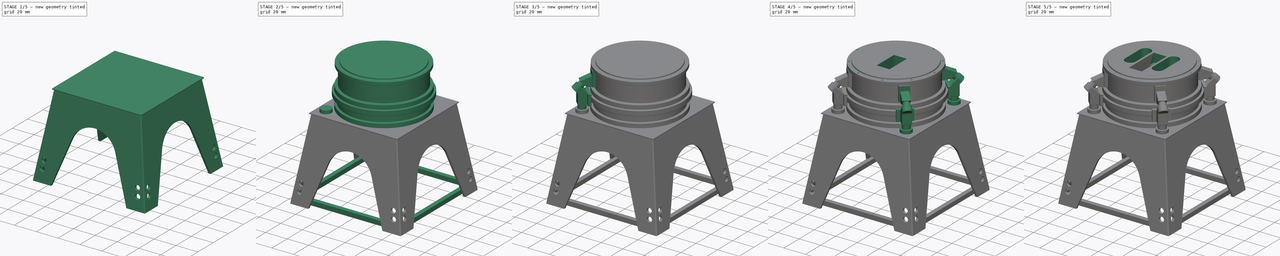
[diagram: build sequence overview — one tinted view per stage of 5, left to right]
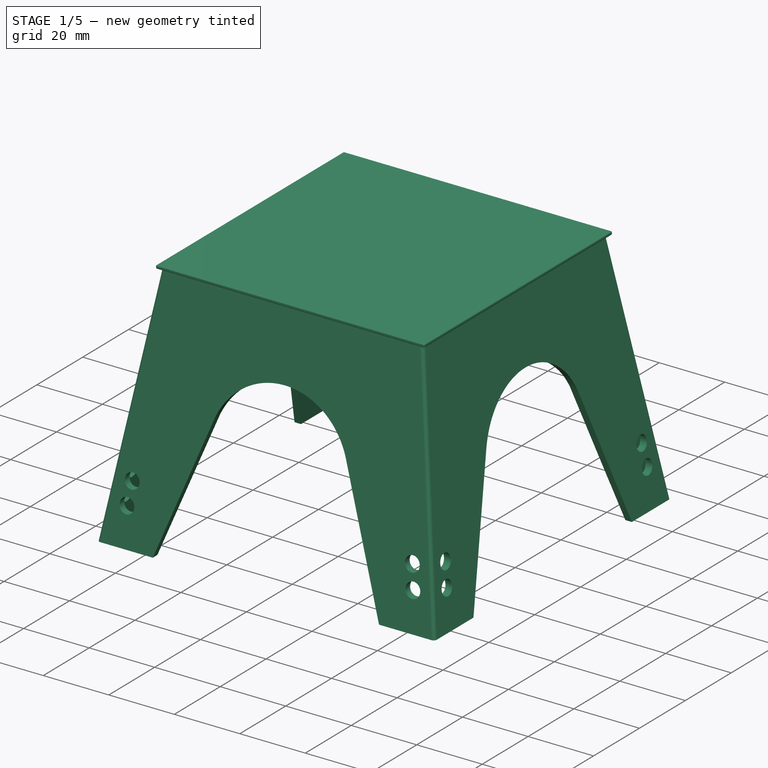
[diagram: stage 1 of 5 — iso view after this stage's code; geometry added in this stage tinted green]
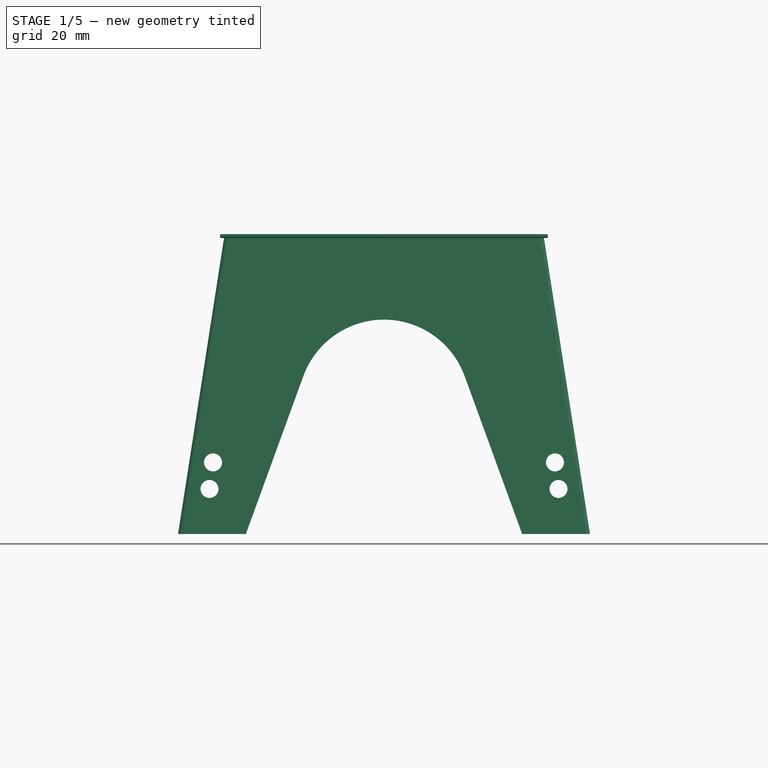
[diagram: stage 1 of 5 — front view after this stage's code; geometry added in this stage tinted green]
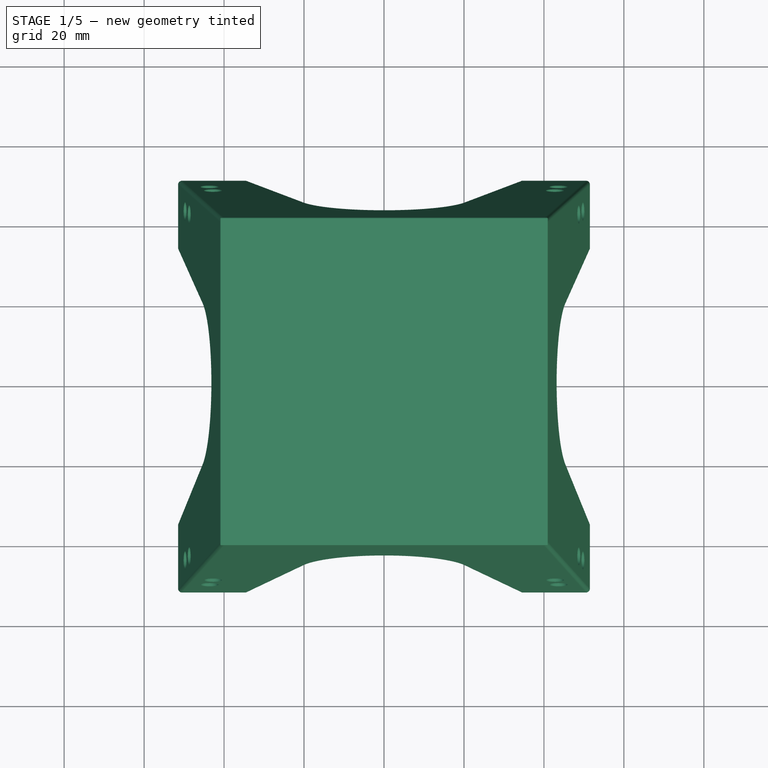
[diagram: stage 1 of 5 — top view after this stage's code; geometry added in this stage tinted green]
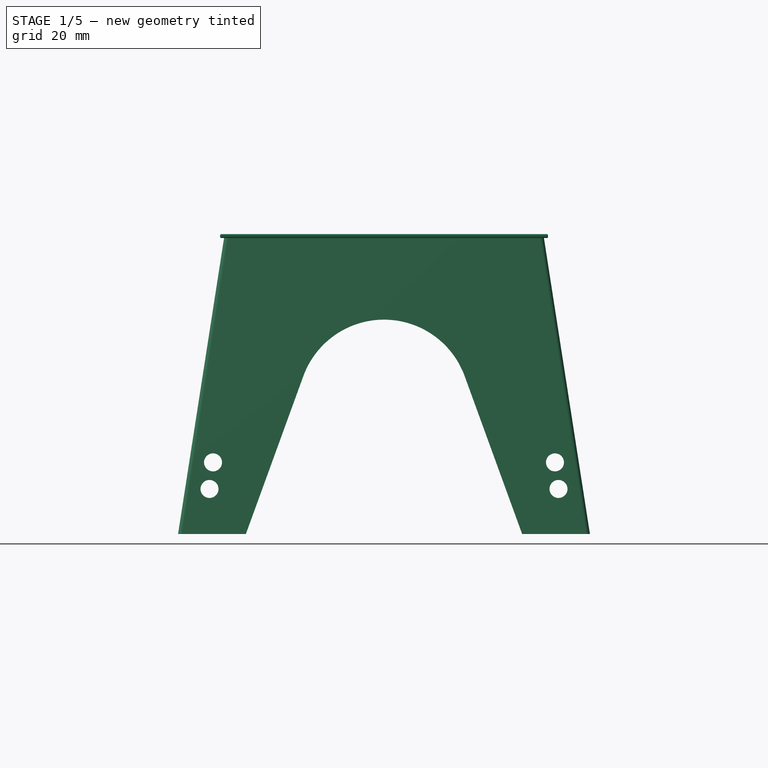
[diagram: stage 1 of 5 — right view after this stage's code; geometry added in this stage tinted green]
FCSTD DOCUMENT  (FreeCAD 1.0R39109 (Git))
Label: FinalsTurretBase_V2_backup
License: All rights reserved
LicenseURL: https://en.wikipedia.org/wiki/All_rights_reserved
objects: Sketcher::SketchObject×25, PartDesign::Pad×15, PartDesign::Pocket×6, PartDesign::Plane×5, PartDesign::PolarPattern×5, PartDesign::Fillet×4, Image::ImagePlane×2, PartDesign::AdditiveLoft×1, PartDesign::SubtractiveLoft×1, PartDesign::Groove×1, PartDesign::Body×1
note: 150 computed .brp shape members not serialized (recipe doc carries the construction recipe); baked Part::Feature solids carry a one-line shape summary decoded from their .brp

FEATURE [Image::ImagePlane] The_Finals_Screenshot_2025  label="The Finals Screenshot 2025"
  Placement = pos=(0,0,0) rot=(1,0,0;1.5708rad)
  XSize = 826.629
  YSize = 464.979
FEATURE [Image::ImagePlane] The_Finals_Screenshot_2026  label="The Finals Screenshot 2026"
  Placement = pos=(0,0,0) rot=(0.57735,0.57735,0.57735;2.0944rad)
  XSize = 826.63
  YSize = 464.98
FEATURE [PartDesign::Plane] DatumPlane
  AttachmentOffset = pos=(0,0,-139) rot=(0,0,1;0rad)
  AttachmentSupport = -> [XY_Plane]
  Length = 123.6
  MapMode = 5
  Placement = pos=(0,0,-139) rot=(0,0,1;0rad)
  ResizeMode = 0
  Width = 123.6
FEATURE [Sketcher::SketchObject] Sketch  label="Legs Box Bottom Sketch"
  ArcFitTolerance = 1e-06
  AttachmentSupport = -> [DatumPlane]
  FullyConstrained = true
  MakeInternals = false
  MapMode = 5
  Placement = pos=(0,0,-139) rot=(0,0,1;0rad)
  sketch-geometry (8):
    g0: LineSegment StartX=-51.5 StartY=51.5 StartZ=0 EndX=-51.5 EndY=-51.5 EndZ=0
    g1: LineSegment StartX=-51.5 StartY=-51.5 StartZ=0 EndX=51.5 EndY=-51.5 EndZ=0
    g2: LineSegment StartX=51.5 StartY=-51.5 StartZ=0 EndX=51.5 EndY=51.5 EndZ=0
    g3: LineSegment StartX=51.5 StartY=51.5 StartZ=0 EndX=-51.5 EndY=51.5 EndZ=0
    g4: LineSegment [constr] StartX=-51.5 StartY=8.96 StartZ=0 EndX=0 EndY=8.96 EndZ=0
    g5: LineSegment [constr] StartX=0 StartY=8.96 StartZ=0 EndX=51.5 EndY=8.96 EndZ=0
    g6: LineSegment [constr] StartX=-11.78 StartY=0 StartZ=0 EndX=-11.78 EndY=51.5 EndZ=0
    g7: LineSegment [constr] StartX=-11.78 StartY=0 StartZ=0 EndX=-11.78 EndY=-51.5 EndZ=0
  constraints (26):
    c: Coincident(g0,g1)
    c: Coincident(g1,g2)
    c: Coincident(g2,g3)
    c: Coincident(g3,g0)
    c: Vertical(g0)
    c: Vertical(g2)
    c: Horizontal(g1)
    c: Horizontal(g3)
    c: PointOnObject(g4,g0)
    c: PointOnObject(g4,g-2)
    c: Horizontal(g4)
    c: Coincident(g5,g4)
    c: PointOnObject(g5,g2)
    c: Horizontal(g5)
    c: Equal(g4,g5)
    c: DistanceX(g1,g1) = 103
    c: PointOnObject(g6,g-1)
    c: PointOnObject(g6,g3)
    c: Vertical(g6)
    c: Coincident(g7,g6)
    c: PointOnObject(g7,g1)
    c: Vertical(g7)
    c: Equal(g7,g6)
    c: DistanceY(g0,g0) = 103
    c: Distance(g-1,g5) = 8.96
    c: Distance(g-2,g6) = 11.78
FEATURE [PartDesign::Plane] DatumPlane001
  AttachmentOffset = pos=(0,0,-65) rot=(0,0,1;0rad)
  AttachmentSupport = -> [XY_Plane]
  Length = 123.6
  MapMode = 5
  Placement = pos=(0,0,-65) rot=(0,0,1;0rad)
  ResizeMode = 0
  Width = 123.6
FEATURE [Sketcher::SketchObject] Sketch001  label="Legs Box Top Sketch"
  ArcFitTolerance = 1e-06
  AttachmentSupport = -> [DatumPlane001]
  FullyConstrained = true
  MakeInternals = false
  MapMode = 5
  Placement = pos=(0,0,-65) rot=(0,0,1;0rad)
  sketch-geometry (8):
    g0: LineSegment StartX=40 StartY=40 StartZ=0 EndX=40 EndY=-40 EndZ=0
    g1: LineSegment StartX=40 StartY=-40 StartZ=0 EndX=-40 EndY=-40 EndZ=0
    g2: LineSegment StartX=-40 StartY=-40 StartZ=0 EndX=-40 EndY=40 EndZ=0
    g3: LineSegment StartX=-40 StartY=40 StartZ=0 EndX=40 EndY=40 EndZ=0
    g4: LineSegment [constr] StartX=-14.12 StartY=0 StartZ=0 EndX=-14.12 EndY=40 EndZ=0
    g5: LineSegment [constr] StartX=-14.12 StartY=0 StartZ=0 EndX=-14.12 EndY=-40 EndZ=0
    g6: LineSegment [constr] StartX=40 StartY=-10.77 StartZ=0 EndX=0 EndY=-10.77 EndZ=0
    g7: LineSegment [constr] StartX=0 StartY=-10.77 StartZ=0 EndX=-40 EndY=-10.77 EndZ=0
  constraints (26):
    c: Coincident(g0,g1)
    c: Coincident(g1,g2)
    c: Coincident(g2,g3)
    c: Coincident(g3,g0)
    c: Vertical(g0)
    c: Vertical(g2)
    c: Horizontal(g1)
    c: Horizontal(g3)
    c: PointOnObject(g4,g-1)
    c: PointOnObject(g4,g3)
    c: Vertical(g4)
    c: Coincident(g5,g4)
    c: PointOnObject(g5,g1)
    c: Vertical(g5)
    c: PointOnObject(g6,g0)
    c: PointOnObject(g6,g-2)
    c: Horizontal(g6)
    c: Coincident(g7,g6)
    c: PointOnObject(g7,g2)
    c: Horizontal(g7)
    c: Equal(g6,g7)
    c: Equal(g4,g5)
    c: DistanceX(g1,g1) = 80
    c: DistanceY(g0,g0) = 80
    c: Distance(g-2,g4) = 14.12
    c: Distance(g-1,g7) = 10.77
FEATURE [PartDesign::AdditiveLoft] AdditiveLoft  label="Legs Box"
  Closed = false
  Placement = pos=(0,0,-139) rot=(0,0,1;0rad)
  Profile = -> Sketch
  Refine = true
  Ruled = false
  Sections = -> [Sketch001]
  Suppressed = false
FEATURE [Sketcher::SketchObject] Sketch002
  ArcFitTolerance = 1e-06
  AttachmentSupport = -> [XZ_Plane]
  ExternalGeometry = -> [AdditiveLoft]
  FullyConstrained = true
  MakeInternals = false
  MapMode = 5
  Placement = pos=(0,0,0) rot=(1,0,0;1.5708rad)
  sketch-geometry (11):
    g0: LineSegment StartX=1e-15 StartY=-139 StartZ=0 EndX=-34.54 EndY=-139 EndZ=0
    g1: LineSegment StartX=-34.54 StartY=-139 StartZ=0 EndX=-20.1581 EndY=-99.4859 EndZ=0
    g2: LineSegment StartX=1e-15 StartY=-139 StartZ=0 EndX=34.54 EndY=-139 EndZ=0
    g3: LineSegment StartX=34.54 StartY=-139 StartZ=0 EndX=20.1581 EndY=-99.4859 EndZ=0
    g4: ArcOfCircle CenterX=-3.2e-15 CenterY=-106.876 CenterZ=0 NormalX=0 NormalY=0 NormalZ=1 AngleXU=0 Radius=21.47 StartAngle=0.351394 EndAngle=2.7902
    g5: Circle CenterX=43.64 CenterY=-127.75 CenterZ=0 NormalX=0 NormalY=0 NormalZ=1 AngleXU=0 Radius=2.25
    g6: Circle CenterX=42.76 CenterY=-121.1 CenterZ=0 NormalX=0 NormalY=0 NormalZ=1 AngleXU=0 Radius=2.25
    g7: Circle CenterX=-42.76 CenterY=-121.1 CenterZ=0 NormalX=0 NormalY=0 NormalZ=1 AngleXU=0 Radius=2.25
    g8: Circle CenterX=-43.64 CenterY=-127.75 CenterZ=0 NormalX=0 NormalY=0 NormalZ=1 AngleXU=0 Radius=2.25
    g9: LineSegment [constr] StartX=42.76 StartY=-121.1 StartZ=0 EndX=-42.76 EndY=-121.1 EndZ=0
    g10: LineSegment [constr] StartX=-43.64 StartY=-127.75 StartZ=0 EndX=43.64 EndY=-127.75 EndZ=0
  constraints (31):
    c: Symmetric(g-3,g-3,g0)
    c: PointOnObject(g0,g-3)
    c: Coincident(g0,g1)
    c: Coincident(g0,g2)
    c: PointOnObject(g2,g-3)
    c: Coincident(g2,g3)
    c: Angle(g0,g1) = 1.22173
    c: Angle(g3,g2) = 1.22173
    c: Equal(g1,g3)
    c: Equal(g0,g2)
    c: Coincident(g4,g1)
    c: Coincident(g4,g3)
    c: DistanceX(g0,g0) = 34.54
    c: Radius(g4) = 21.47
    c: Distance(g1,g1) = 42.05
    c: Equal(g8,g7)
    c: Equal(g7,g6)
    c: Equal(g6,g5)
    c: Distance(g6,g-3) = 17.9
    c: DistanceX(g6,g-3) = 8.74
    c: Distance(g5,g-3) = 11.25
    c: DistanceX(g5,g-3) = 7.86
    c: Diameter(g6) = 4.5
    c: Coincident(g9,g6)
    c: Coincident(g9,g7)
    c: Horizontal(g9)
    c: Coincident(g10,g8)
    c: Coincident(g10,g5)
    c: Horizontal(g10)
    c: DistanceX(g-3,g7) = 8.74
    c: DistanceX(g-3,g8) = 7.86
FEATURE [PartDesign::Pocket] Pocket
  BaseFeature = -> AdditiveLoft
  Direction = (0,1,-2e-16)
  Length = 60
  Length2 = 60
  Placement = pos=(0,0,-139) rot=(0,0,1;0rad)
  Profile = -> Sketch002
  ReferenceAxis = -> Sketch002 [N_Axis]
  Refine = true
  Suppressed = false
  Type = 4
FEATURE [PartDesign::PolarPattern] PolarPattern
  Angle = 90
  Axis = -> Z_Axis
  BaseFeature = -> Pocket
  Mode = 0
  Occurrences = 2
  Offset = 120
  Originals = -> [Pocket]
  Placement = pos=(0,0,-139) rot=(0,0,1;0rad)
  Refine = true
  Suppressed = false
  TransformMode = 0
FEATURE [PartDesign::Plane] DatumPlane002
  AttachmentOffset = pos=(0,0,-2) rot=(0,0,1;0rad)
  AttachmentSupport = -> [PolarPattern]
  Length = 123.6
  MapMode = 5
  Placement = pos=(0,0,-67) rot=(0,0,1;0rad)
  ResizeMode = 0
  Width = 123.6
FEATURE [PartDesign::Plane] DatumPlane003
  AttachmentSupport = -> [PolarPattern]
  Length = 123.6
  MapMode = 5
  Placement = pos=(0,0,-139) rot=(1,0,0;3.14159rad)
  ResizeMode = 0
  Width = 123.6
FEATURE [Sketcher::SketchObject] Sketch003
  ArcFitTolerance = 1e-06
  AttachmentSupport = -> [DatumPlane003]
  ExternalGeometry = -> [PolarPattern]
  FullyConstrained = true
  MakeInternals = false
  MapMode = 5
  Placement = pos=(0,0,-139) rot=(1,0,0;3.14159rad)
  sketch-geometry (4):
    g0: LineSegment StartX=-49.5 StartY=49.5 StartZ=0 EndX=-49.5 EndY=-49.5 EndZ=0
    g1: LineSegment StartX=-49.5 StartY=-49.5 StartZ=0 EndX=49.5 EndY=-49.5 EndZ=0
    g2: LineSegment StartX=49.5 StartY=-49.5 StartZ=0 EndX=49.5 EndY=49.5 EndZ=0
    g3: LineSegment StartX=49.5 StartY=49.5 StartZ=0 EndX=-49.5 EndY=49.5 EndZ=0
  constraints (12):
    c: Coincident(g0,g1)
    c: Coincident(g1,g2)
    c: Coincident(g2,g3)
    c: Coincident(g3,g0)
    c: Vertical(g0)
    c: Vertical(g2)
    c: Horizontal(g1)
    c: Horizontal(g3)
    c: Distance(g-3,g3) = 2
    c: Distance(g0,g-4) = 2
    c: Distance(g-6,g1) = 2
    c: Distance(g-8,g2) = 2
FEATURE [Sketcher::SketchObject] Sketch004
  ArcFitTolerance = 1e-06
  AttachmentSupport = -> [DatumPlane002]
  ExternalGeometry = -> [PolarPattern]
  FullyConstrained = true
  MakeInternals = false
  MapMode = 5
  Placement = pos=(0,0,-67) rot=(0,0,1;0rad)
  sketch-geometry (4):
    g0: LineSegment StartX=-38 StartY=38 StartZ=0 EndX=-38 EndY=-38 EndZ=0
    g1: LineSegment StartX=-38 StartY=-38 StartZ=0 EndX=38 EndY=-38 EndZ=0
    g2: LineSegment StartX=38 StartY=-38 StartZ=0 EndX=38 EndY=38 EndZ=0
    g3: LineSegment StartX=38 StartY=38 StartZ=0 EndX=-38 EndY=38 EndZ=0
  constraints (12):
    c: Coincident(g0,g1)
    c: Coincident(g1,g2)
    c: Coincident(g2,g3)
    c: Coincident(g3,g0)
    c: Vertical(g0)
    c: Vertical(g2)
    c: Horizontal(g1)
    c: Horizontal(g3)
    c: Distance(g-3,g3) = 2
    c: Distance(g-4,g0) = 2
    c: Distance(g-5,g1) = 2
    c: Distance(g-6,g2) = 2
FEATURE [PartDesign::SubtractiveLoft] SubtractiveLoft
  BaseFeature = -> PolarPattern
  Closed = false
  Placement = pos=(0,0,-139) rot=(0,0,1;0rad)
  Profile = -> Sketch003
  Refine = true
  Ruled = false
  Sections = -> [Sketch004]
  Suppressed = false
FEATURE [Sketcher::SketchObject] Sketch005
  ArcFitTolerance = 1e-06
  AttachmentSupport = -> [SubtractiveLoft]
  ExternalGeometry = -> [SubtractiveLoft]
  FullyConstrained = true
  MakeInternals = false
  MapMode = 5
  Placement = pos=(0,0,-65) rot=(0,0,1;0rad)
  sketch-geometry (4):
    g0: LineSegment StartX=-41 StartY=41 StartZ=0 EndX=-41 EndY=-41 EndZ=0
    g1: LineSegment StartX=-41 StartY=-41 StartZ=0 EndX=41 EndY=-41 EndZ=0
    g2: LineSegment StartX=41 StartY=-41 StartZ=0 EndX=41 EndY=41 EndZ=0
    g3: LineSegment StartX=41 StartY=41 StartZ=0 EndX=-41 EndY=41 EndZ=0
  constraints (12):
    c: Coincident(g0,g1)
    c: Coincident(g1,g2)
    c: Coincident(g2,g3)
    c: Coincident(g3,g0)
    c: Vertical(g0)
    c: Vertical(g2)
    c: Horizontal(g1)
    c: Horizontal(g3)
    c: Distance(g3,g-3) = 1
    c: Distance(g0,g-4) = 1
    c: Distance(g1,g-5) = 1
    c: Distance(g2,g-6) = 1
FEATURE [PartDesign::Pad] Pad
  BaseFeature = -> SubtractiveLoft
  Direction = (0,0,1)
  Length = 1
  Length2 = 10
  Placement = pos=(0,0,-139) rot=(0,0,1;0rad)
  Profile = -> Sketch005
  ReferenceAxis = -> Sketch005 [N_Axis]
  Refine = true
  Suppressed = false
  Type = 0
FEATURE [PartDesign::Fillet] Fillet
  Base = -> Pad [Face43,Face44,Face45,Face46]
  BaseFeature = -> Pad
  Placement = pos=(0,0,-139) rot=(0,0,1;0rad)
  Radius = 0.3
  Refine = true
  SupportTransform = false
  Suppressed = false
  UseAllEdges = false
FEATURE [PartDesign::Fillet] Fillet001
  Base = -> Fillet [Edge22,Edge36,Edge50,Edge21]
  BaseFeature = -> Fillet
  Placement = pos=(0,0,-139) rot=(0,0,1;0rad)
  Radius = 1
  Refine = true
  SupportTransform = false
  Suppressed = false
  UseAllEdges = false
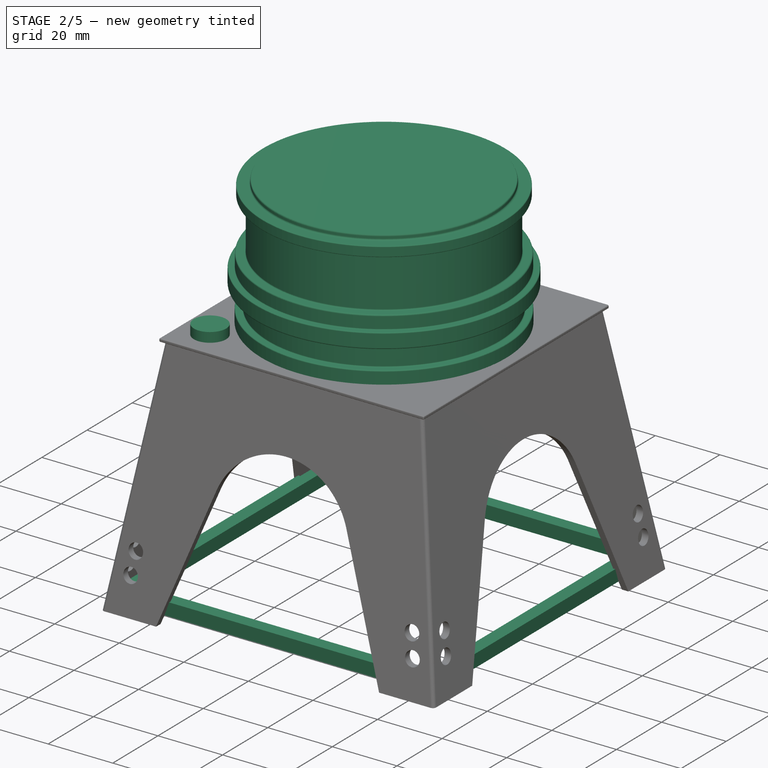
[diagram: stage 2 of 5 — iso view after this stage's code; geometry added in this stage tinted green]
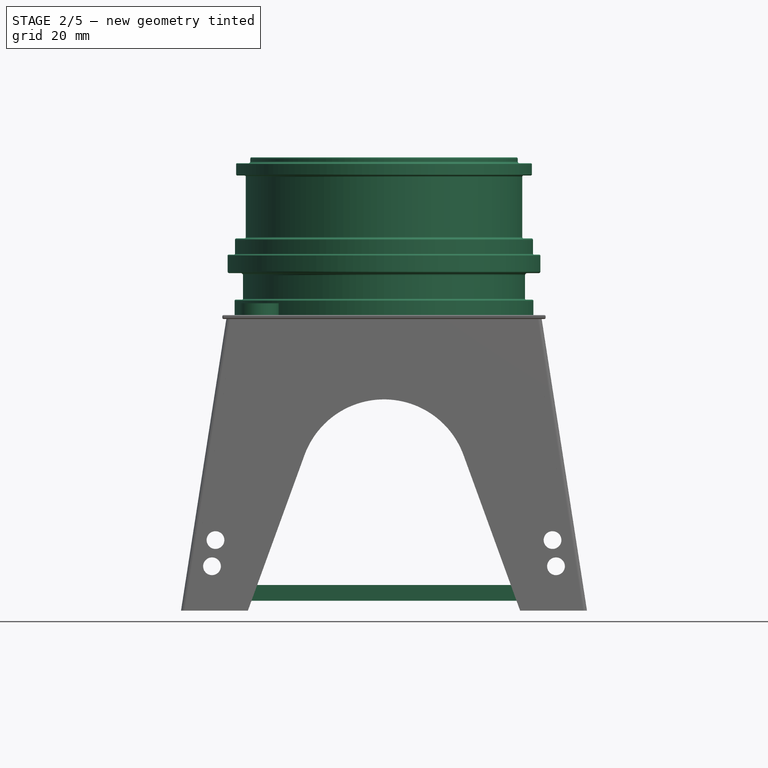
[diagram: stage 2 of 5 — front view after this stage's code; geometry added in this stage tinted green]
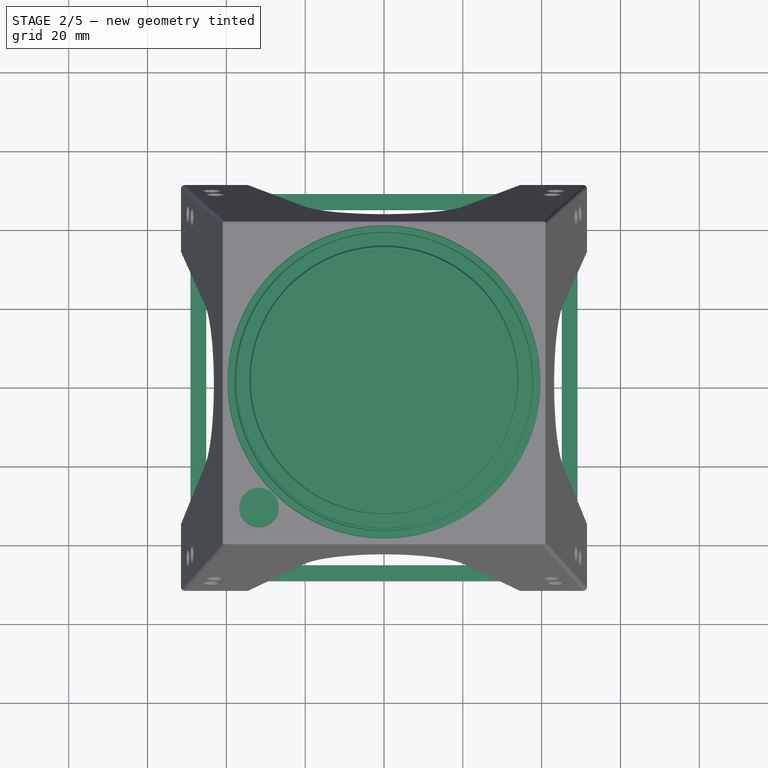
[diagram: stage 2 of 5 — top view after this stage's code; geometry added in this stage tinted green]
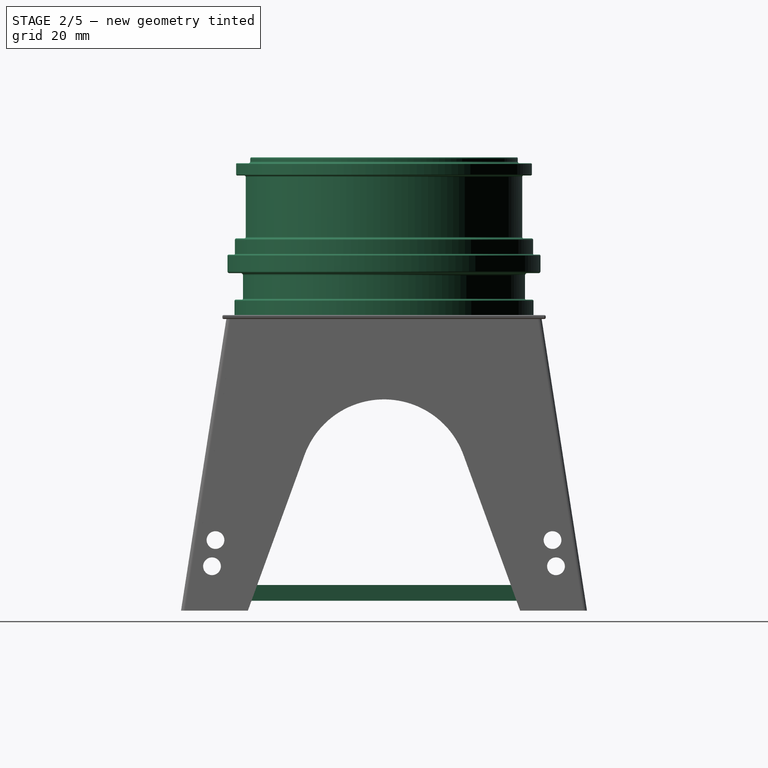
[diagram: stage 2 of 5 — right view after this stage's code; geometry added in this stage tinted green]
FEATURE [Sketcher::SketchObject] Sketch006
  ArcFitTolerance = 1e-06
  AttachmentSupport = -> [Fillet001]
  ExternalGeometry = -> [Fillet001]
  FullyConstrained = true
  MakeInternals = false
  MapMode = 5
  Placement = pos=(0,0,-64) rot=(0,0,1;0rad)
  sketch-geometry (1):
    g0: Circle CenterX=0 CenterY=0 CenterZ=0 NormalX=0 NormalY=0 NormalZ=1 AngleXU=0 Radius=40.7
  constraints (2):
    c: Coincident(g0,g-1)
    c: Tangent(g0,g-3)
FEATURE [PartDesign::Pad] Pad001
  BaseFeature = -> Fillet001
  Direction = (0,0,1)
  Length = 40
  Length2 = 10
  Placement = pos=(0,0,-139) rot=(0,0,1;0rad)
  Profile = -> Sketch006
  ReferenceAxis = -> Sketch006 [N_Axis]
  Refine = true
  Suppressed = false
  Type = 0
FEATURE [Sketcher::SketchObject] Sketch007
  ArcFitTolerance = 1e-06
  AttachmentSupport = -> [YZ_Plane]
  ExternalGeometry = -> [Pad001]
  FullyConstrained = false
  MakeInternals = false
  MapMode = 5
  Placement = pos=(0,0,0) rot=(0.57735,0.57735,0.57735;2.0944rad)
  sketch-geometry (52):
    g0: LineSegment StartX=-59.3942 StartY=-64 StartZ=0 EndX=-37.9275 EndY=-64 EndZ=0
    g1: LineSegment [constr] StartX=0 StartY=-60.1 StartZ=0 EndX=-99.2382 EndY=-60.1 EndZ=0
    g2: LineSegment [constr] StartX=0 StartY=-53.37 StartZ=0 EndX=-99.8442 EndY=-53.37 EndZ=0
    g3: LineSegment [constr] StartX=0 StartY=-48.68 StartZ=0 EndX=-100.407 EndY=-48.68 EndZ=0
    g4: LineSegment [constr] StartX=0 StartY=-44.55 StartZ=0 EndX=-100.577 EndY=-44.55 EndZ=0
    g5: LineSegment [constr] StartX=0 StartY=-28.6 StartZ=0 EndX=-101.296 EndY=-28.6 EndZ=0
    g6: LineSegment [constr] StartX=0 StartY=-25.49 StartZ=0 EndX=-101.945 EndY=-25.49 EndZ=0
    g7: LineSegment [constr] StartX=0 StartY=-23.82 StartZ=0 EndX=-102.082 EndY=-23.82 EndZ=0
    g8: LineSegment StartX=-37.9275 StartY=-64 StartZ=0 EndX=-37.9275 EndY=-60.4027 EndZ=0
    g9: LineSegment [constr] StartX=-39.7 StartY=0 StartZ=0 EndX=-39.7 EndY=-64 EndZ=0
    g10: LineSegment StartX=-37.6248 StartY=-60.1 StartZ=0 EndX=-36.0471 EndY=-60.1 EndZ=0
    g11: LineSegment StartX=-35.7872 StartY=-59.8401 StartZ=0 EndX=-35.7872 EndY=-53.9234 EndZ=0
    g12: LineSegment StartX=-36.3406 StartY=-53.37 StartZ=0 EndX=-39.2249 EndY=-53.37 EndZ=0
    g13: LineSegment StartX=-39.7 StartY=-52.8949 StartZ=0 EndX=-39.7 EndY=-48.9446 EndZ=0
    g14: LineSegment StartX=-39.4354 StartY=-48.68 StartZ=0 EndX=-38.0562 EndY=-48.68 EndZ=0
    g15: LineSegment StartX=-37.829 StartY=-48.4528 StartZ=0 EndX=-37.829 EndY=-44.9385 EndZ=0
    g16: LineSegment StartX=-37.4405 StartY=-44.55 StartZ=0 EndX=-35.4152 EndY=-44.55 EndZ=0
    g17: LineSegment StartX=-35.0816 StartY=-44.2164 StartZ=0 EndX=-35.0816 EndY=-28.9465 EndZ=0
    g18: LineSegment StartX=-35.4281 StartY=-28.6 StartZ=0 EndX=-37.2345 EndY=-28.6 EndZ=0
    g19: LineSegment StartX=-37.532 StartY=-28.3025 StartZ=0 EndX=-37.532 EndY=-25.7105 EndZ=0
    g20: LineSegment StartX=-37.3115 StartY=-25.49 StartZ=0 EndX=-34.4136 EndY=-25.49 EndZ=0
    g21: LineSegment StartX=-33.933 StartY=-25.0094 StartZ=0 EndX=-33.933 EndY=-24.3661 EndZ=0
    g22: LineSegment StartX=-33.3869 StartY=-23.82 StartZ=0 EndX=-32.1684 EndY=-23.82 EndZ=0
    g23: LineSegment StartX=-32.1684 StartY=-23.82 StartZ=0 EndX=-32.1684 EndY=-17.6229 EndZ=0
    g24: LineSegment StartX=-32.1684 StartY=-17.6229 StartZ=0 EndX=-59.3942 EndY=-17.6229 EndZ=0
    g25: LineSegment StartX=-59.3942 StartY=-17.6229 StartZ=0 EndX=-59.3942 EndY=-64 EndZ=0
    g26: ArcOfCircle CenterX=-37.6248 CenterY=-60.4027 CenterZ=0 NormalX=0 NormalY=0 NormalZ=1 AngleXU=0 Radius=0.302686 StartAngle=1.5708 EndAngle=3.14159
    g27: GeomPoint [constr] X=-37.9275 Y=-60.1 Z=0
    g28: ArcOfCircle CenterX=-36.0471 CenterY=-59.8401 CenterZ=0 NormalX=0 NormalY=0 NormalZ=1 AngleXU=0 Radius=0.25988 StartAngle=4.71239 EndAngle=6.28319
    g29: GeomPoint [constr] X=-35.7872 Y=-60.1 Z=0
    g30: ArcOfCircle CenterX=-36.3406 CenterY=-53.9234 CenterZ=0 NormalX=0 NormalY=0 NormalZ=1 AngleXU=0 Radius=0.553354 StartAngle=0 EndAngle=1.5708
    g31: GeomPoint [constr] X=-35.7872 Y=-53.37 Z=0
    g32: ArcOfCircle CenterX=-39.2249 CenterY=-52.8949 CenterZ=0 NormalX=0 NormalY=0 NormalZ=1 AngleXU=0 Radius=0.475098 StartAngle=3.14159 EndAngle=4.71239
    g33: GeomPoint [constr] X=-39.7 Y=-53.37 Z=0
    g34: ArcOfCircle CenterX=-39.4354 CenterY=-48.9446 CenterZ=0 NormalX=0 NormalY=0 NormalZ=1 AngleXU=0 Radius=0.264598 StartAngle=1.5708 EndAngle=3.14159
    g35: GeomPoint [constr] X=-39.7 Y=-48.68 Z=0
    g36: ArcOfCircle CenterX=-38.0562 CenterY=-48.4528 CenterZ=0 NormalX=0 NormalY=0 NormalZ=1 AngleXU=0 Radius=0.227178 StartAngle=4.71239 EndAngle=6.28319
    g37: GeomPoint [constr] X=-37.829 Y=-48.68 Z=0
    g38: ArcOfCircle CenterX=-37.4405 CenterY=-44.9385 CenterZ=0 NormalX=0 NormalY=0 NormalZ=1 AngleXU=0 Radius=0.388546 StartAngle=1.5708 EndAngle=3.14159
    g39: GeomPoint [constr] X=-37.829 Y=-44.55 Z=0
    g40: ArcOfCircle CenterX=-35.4152 CenterY=-44.2164 CenterZ=0 NormalX=0 NormalY=0 NormalZ=1 AngleXU=0 Radius=0.333597 StartAngle=4.71239 EndAngle=6.28319
    g41: GeomPoint [constr] X=-35.0816 Y=-44.55 Z=0
    g42: ArcOfCircle CenterX=-35.4281 CenterY=-28.9465 CenterZ=0 NormalX=0 NormalY=0 NormalZ=1 AngleXU=0 Radius=0.346541 StartAngle=2e-16 EndAngle=1.5708
    g43: GeomPoint [constr] X=-35.0816 Y=-28.6 Z=0
    g44: ArcOfCircle CenterX=-37.2345 CenterY=-28.3025 CenterZ=0 NormalX=0 NormalY=0 NormalZ=1 AngleXU=0 Radius=0.297532 StartAngle=3.14159 EndAngle=4.71239
    g45: GeomPoint [constr] X=-37.532 Y=-28.6 Z=0
    g46: ArcOfCircle CenterX=-37.3115 CenterY=-25.7105 CenterZ=0 NormalX=0 NormalY=0 NormalZ=1 AngleXU=0 Radius=0.220526 StartAngle=1.5708 EndAngle=3.14159
    g47: GeomPoint [constr] X=-37.532 Y=-25.49 Z=0
    g48: ArcOfCircle CenterX=-34.4136 CenterY=-25.0094 CenterZ=0 NormalX=0 NormalY=0 NormalZ=1 AngleXU=0 Radius=0.480585 StartAngle=4.71239 EndAngle=6.28319
    g49: GeomPoint [constr] X=-33.933 Y=-25.49 Z=0
    g50: ArcOfCircle CenterX=-33.3869 CenterY=-24.3661 CenterZ=0 NormalX=0 NormalY=0 NormalZ=1 AngleXU=0 Radius=0.546116 StartAngle=1.5708 EndAngle=3.14159
    g51: GeomPoint [constr] X=-33.933 Y=-23.82 Z=0
  constraints (109):
    c: PointOnObject(g0,g-3)
    c: Horizontal(g0)
    c: PointOnObject(g1,g-2)
    c: Horizontal(g1)
    c: Distance(g-1,g1) = 60.1
    c: PointOnObject(g2,g-2)
    c: Horizontal(g2)
    c: Distance(g-1,g2) = 53.37
    c: PointOnObject(g3,g-2)
    c: Horizontal(g3)
    c: Distance(g-1,g3) = 48.68
    c: PointOnObject(g4,g-2)
    c: Horizontal(g4)
    c: PointOnObject(g5,g-2)
    c: Horizontal(g5)
    c: PointOnObject(g6,g-2)
    c: Horizontal(g6)
    c: PointOnObject(g7,g-2)
    c: Horizontal(g7)
    c: Distance(g-1,g4) = 44.55
    c: Distance(g-1,g5) = 28.6
    c: Distance(g-1,g6) = 25.49
    c: Distance(g-1,g7) = 23.82
    c: Coincident(g0,g8)
    c: PointOnObject(g27,g1)
    c: Vertical(g8)
    c: PointOnObject(g9,g-1)
    c: PointOnObject(g9,g0)
    c: Vertical(g9)
    c: Distance(g-2,g9) = 39.7
    c: PointOnObject(g29,g1)
    c: PointOnObject(g31,g2)
    c: Vertical(g11)
    c: PointOnObject(g33,g2)
    c: PointOnObject(g35,g9)
    c: Vertical(g13)
    c: PointOnObject(g37,g3)
    c: PointOnObject(g39,g4)
    c: Vertical(g15)
    c: PointOnObject(g41,g4)
    c: PointOnObject(g43,g5)
    c: Vertical(g17)
    c: PointOnObject(g45,g5)
    c: PointOnObject(g47,g6)
    c: Vertical(g19)
    c: PointOnObject(g49,g6)
    c: PointOnObject(g51,g7)
    c: Vertical(g21)
    c: PointOnObject(g22,g7)
    c: Coincident(g22,g23)
    c: Vertical(g23)
    c: Coincident(g23,g24)
    c: Horizontal(g24)
    c: Coincident(g24,g25)
    c: Vertical(g25)
    c: Coincident(g0,g25)
    c: PointOnObject(g27,g8)
    c: PointOnObject(g27,g10)
    c: Tangent(g8,g26) = 1.5708
    c: Tangent(g10,g26) = 1.5708
    c: PointOnObject(g29,g10)
    c: PointOnObject(g29,g11)
    c: Tangent(g10,g28) = -1.5708
    c: Tangent(g11,g28) = -1.5708
    c: PointOnObject(g31,g11)
    c: PointOnObject(g31,g12)
    c: Tangent(g11,g30) = -1.5708
    c: Tangent(g12,g30) = -1.5708
    c: PointOnObject(g33,g12)
    c: PointOnObject(g33,g13)
    c: Tangent(g12,g32) = 1.5708
    c: Tangent(g13,g32) = 1.5708
    c: PointOnObject(g35,g3)
    c: PointOnObject(g35,g13)
    c: PointOnObject(g35,g14)
    c: Tangent(g13,g34) = 1.5708
    c: Tangent(g14,g34) = 1.5708
    c: PointOnObject(g37,g14)
    c: PointOnObject(g37,g15)
    c: Tangent(g14,g36) = -1.5708
    c: Tangent(g15,g36) = -1.5708
    c: PointOnObject(g39,g15)
    c: PointOnObject(g39,g16)
    c: Tangent(g15,g38) = 1.5708
    c: Tangent(g16,g38) = 1.5708
    c: PointOnObject(g41,g16)
    c: PointOnObject(g41,g17)
    c: Tangent(g16,g40) = -1.5708
    c: Tangent(g17,g40) = -1.5708
    c: PointOnObject(g43,g17)
    c: PointOnObject(g43,g18)
    c: Tangent(g17,g42) = -1.5708
    c: Tangent(g18,g42) = -1.5708
    c: PointOnObject(g45,g18)
    c: PointOnObject(g45,g19)
    c: Tangent(g18,g44) = 1.5708
    c: Tangent(g19,g44) = 1.5708
    c: PointOnObject(g47,g19)
    c: PointOnObject(g47,g20)
    c: Tangent(g19,g46) = 1.5708
    c: Tangent(g20,g46) = 1.5708
    c: PointOnObject(g49,g20)
    c: PointOnObject(g49,g21)
    c: Tangent(g20,g48) = -1.5708
    c: Tangent(g21,g48) = -1.5708
    c: PointOnObject(g51,g21)
    c: PointOnObject(g51,g22)
    c: Tangent(g21,g50) = 1.5708
    c: Tangent(g22,g50) = 1.5708
FEATURE [PartDesign::Groove] Groove
  Angle = 360
  Angle2 = 60
  Axis = (0,0,1)
  Base = (0,0,0)
  BaseFeature = -> Pad001
  Placement = pos=(0,0,-139) rot=(0,0,1;0rad)
  Profile = -> Sketch007
  ReferenceAxis = -> Sketch007 [V_Axis]
  Refine = true
  Reversed = true
  Suppressed = false
  Type = 0
FEATURE [Sketcher::SketchObject] Sketch008
  ArcFitTolerance = 1e-06
  AttachmentSupport = -> [XZ_Plane]
  ExternalGeometry = -> [Groove]
  FullyConstrained = true
  MakeInternals = false
  MapMode = 5
  Placement = pos=(0,0,0) rot=(1,0,0;1.5708rad)
  sketch-geometry (4):
    g0: LineSegment StartX=-49.1007 StartY=-132.5 StartZ=0 EndX=-49.1007 EndY=-136.5 EndZ=0
    g1: LineSegment StartX=-49.1007 StartY=-136.5 StartZ=0 EndX=-45.1007 EndY=-136.5 EndZ=0
    g2: LineSegment StartX=-45.1007 StartY=-136.5 StartZ=0 EndX=-45.1007 EndY=-132.5 EndZ=0
    g3: LineSegment StartX=-45.1007 StartY=-132.5 StartZ=0 EndX=-49.1007 EndY=-132.5 EndZ=0
  constraints (12):
    c: Coincident(g0,g1)
    c: Coincident(g1,g2)
    c: Coincident(g2,g3)
    c: Coincident(g3,g0)
    c: Vertical(g0)
    c: Vertical(g2)
    c: Horizontal(g1)
    c: Horizontal(g3)
    c: DistanceY(g2,g2) = 4
    c: Equal(g2,g1)
    c: PointOnObject(g0,g-4)
    c: Distance(g1,g-3) = 2.5
FEATURE [PartDesign::Pad] Pad002
  BaseFeature = -> Groove
  Direction = (0,-1,2e-16)
  Length = 22
  Length2 = 10
  Placement = pos=(0,0,-139) rot=(0,0,1;0rad)
  Profile = -> Sketch008
  ReferenceAxis = -> Sketch008 [N_Axis]
  Refine = true
  Suppressed = false
  Type = 3
  UpToFace = -> Groove [Face54]
FEATURE [PartDesign::Pad] Pad003
  BaseFeature = -> Pad002
  Direction = (0,-1,2e-16)
  Length = 10
  Length2 = 10
  Placement = pos=(0,0,-139) rot=(0,0,1;0rad)
  Profile = -> Sketch008
  ReferenceAxis = -> Sketch008 [N_Axis]
  Refine = true
  Suppressed = false
  Type = 3
  UpToFace = -> Pad002 [Face57]
FEATURE [PartDesign::PolarPattern] PolarPattern001
  Angle = 360
  Axis = -> Z_Axis
  BaseFeature = -> Pad003
  Mode = 0
  Occurrences = 4
  Offset = 120
  Originals = -> [Pad003,Pad002]
  Placement = pos=(0,0,-139) rot=(0,0,1;0rad)
  Refine = true
  Suppressed = false
  TransformMode = 0
FEATURE [Sketcher::SketchObject] Sketch009
  ArcFitTolerance = 1e-06
  AttachmentSupport = -> [PolarPattern001]
  ExternalGeometry = -> [PolarPattern001]
  FullyConstrained = true
  MakeInternals = false
  MapMode = 5
  Placement = pos=(0,0,-64) rot=(0,0,1;0rad)
  sketch-geometry (3):
    g0: Circle CenterX=-31.7 CenterY=-31.7 CenterZ=0 NormalX=0 NormalY=0 NormalZ=1 AngleXU=0 Radius=5
    g1: LineSegment [constr] StartX=-31.7 StartY=-31.7 StartZ=0 EndX=-40.7 EndY=-31.7 EndZ=0
    g2: LineSegment [constr] StartX=-31.7 StartY=-31.7 StartZ=0 EndX=-31.7 EndY=-40.7 EndZ=0
  constraints (9):
    c: Coincident(g1,g0)
    c: PointOnObject(g1,g-3)
    c: Horizontal(g1)
    c: Coincident(g2,g0)
    c: PointOnObject(g2,g-4)
    c: Vertical(g2)
    c: Equal(g2,g1)
    c: Diameter(g0) = 10
    c: DistanceX(g1,g1) = 9
FEATURE [PartDesign::Pad] Pad004
  BaseFeature = -> PolarPattern001
  Direction = (0,0,1)
  Length = 3
  Length2 = 10
  Placement = pos=(0,0,-139) rot=(0,0,1;0rad)
  Profile = -> Sketch009
  ReferenceAxis = -> Sketch009 [N_Axis]
  Refine = true
  Suppressed = false
  Type = 0
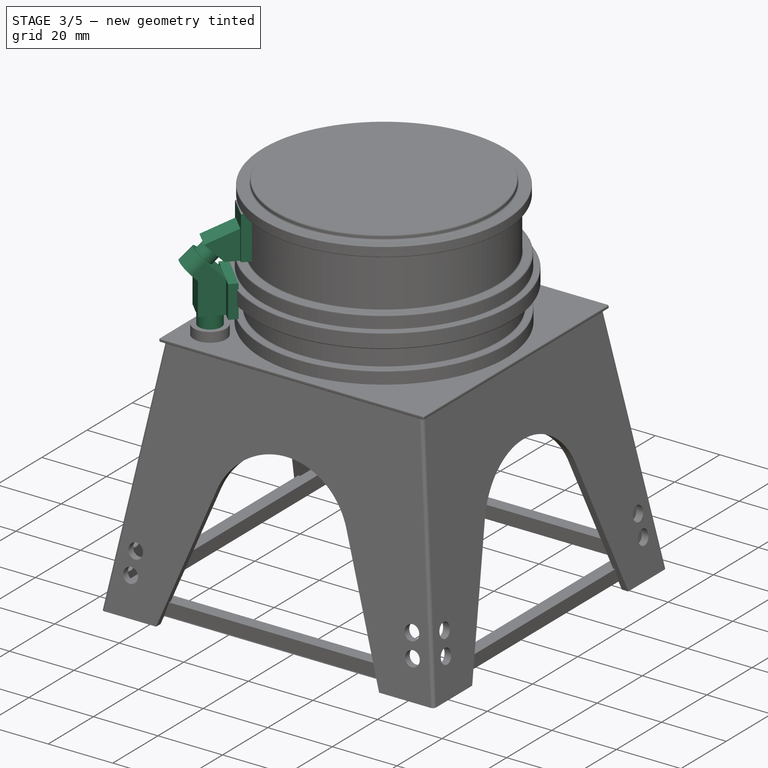
[diagram: stage 3 of 5 — iso view after this stage's code; geometry added in this stage tinted green]
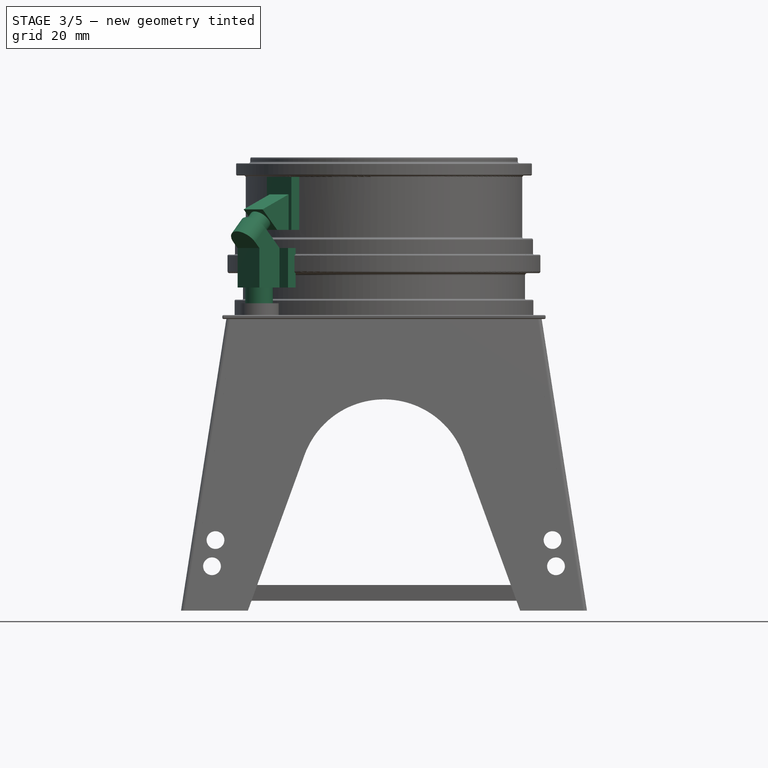
[diagram: stage 3 of 5 — front view after this stage's code; geometry added in this stage tinted green]
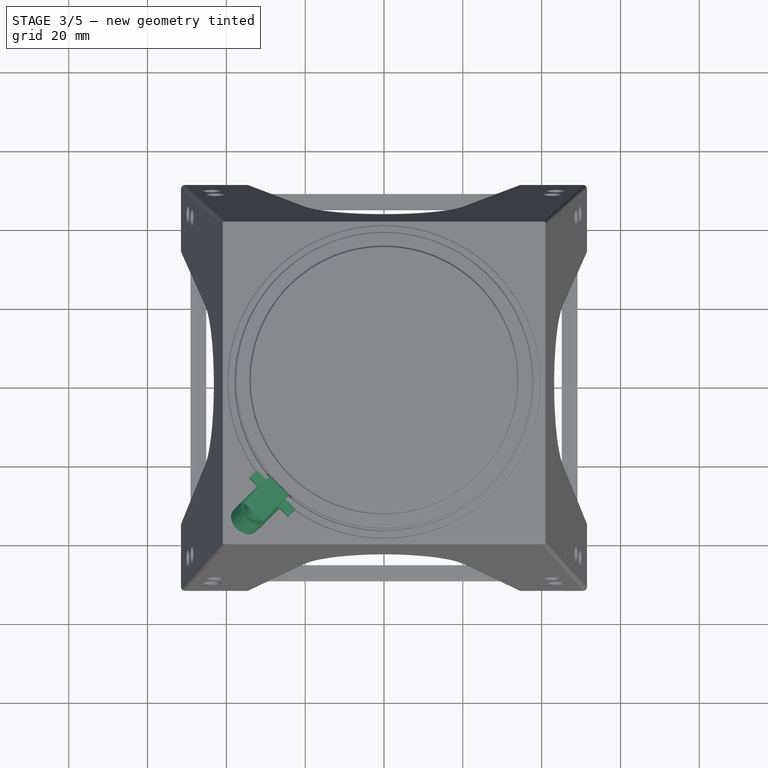
[diagram: stage 3 of 5 — top view after this stage's code; geometry added in this stage tinted green]
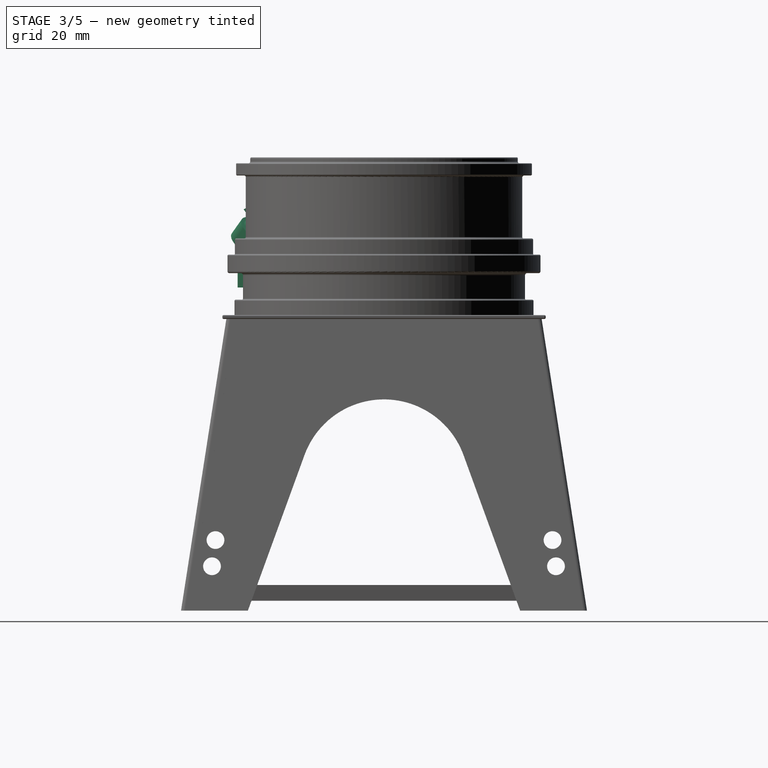
[diagram: stage 3 of 5 — right view after this stage's code; geometry added in this stage tinted green]
FEATURE [Sketcher::SketchObject] Sketch010
  ArcFitTolerance = 1e-06
  AttachmentSupport = -> [Pad004]
  ExternalGeometry = -> [Pad004]
  FullyConstrained = true
  MakeInternals = false
  MapMode = 5
  Placement = pos=(0,0,-61) rot=(0,0,1;0rad)
  sketch-geometry (1):
    g0: Circle CenterX=-31.7 CenterY=-31.7 CenterZ=0 NormalX=0 NormalY=0 NormalZ=1 AngleXU=0 Radius=3.5
  constraints (2):
    c: Coincident(g0,g-3)
    c: Diameter(g0) = 7
FEATURE [PartDesign::Pad] Pad005
  BaseFeature = -> Pad004
  Direction = (0,0,1)
  Length = 4
  Length2 = 10
  Placement = pos=(0,0,-139) rot=(0,0,1;0rad)
  Profile = -> Sketch010
  ReferenceAxis = -> Sketch010 [N_Axis]
  Refine = true
  Suppressed = false
  Type = 0
FEATURE [Sketcher::SketchObject] Sketch011
  ArcFitTolerance = 1e-06
  AttachmentSupport = -> [Pad005]
  ExternalGeometry = -> [Pad005]
  FullyConstrained = true
  MakeInternals = false
  MapMode = 5
  Placement = pos=(0,0,-57) rot=(0,0,1;0rad)
  sketch-geometry (13):
    g0: LineSegment [constr] StartX=0 StartY=0 StartZ=0 EndX=-63.081 EndY=-63.081 EndZ=0
    g1: LineSegment StartX=-37.1549 StartY=-31.6324 StartZ=0 EndX=-32.0284 EndY=-26.5059 EndZ=0
    g2: LineSegment StartX=-32.0284 StartY=-26.5059 StartZ=0 EndX=-34.1886 EndY=-24.3457 EndZ=0
    g3: LineSegment StartX=-34.1886 StartY=-24.3457 StartZ=0 EndX=-32.2794 EndY=-22.4365 EndZ=0
    g4: LineSegment StartX=-32.2794 StartY=-22.4365 StartZ=0 EndX=-22.4365 EndY=-32.2794 EndZ=0
    g5: LineSegment StartX=-22.4365 StartY=-32.2794 StartZ=0 EndX=-24.3457 EndY=-34.1886 EndZ=0
    g6: LineSegment StartX=-24.3457 StartY=-34.1886 StartZ=0 EndX=-26.5059 EndY=-32.0284 EndZ=0
    g7: LineSegment StartX=-26.5059 StartY=-32.0284 StartZ=0 EndX=-31.6324 EndY=-37.1549 EndZ=0
    g8: LineSegment [constr] StartX=-33.234 StartY=-23.3911 StartZ=0 EndX=-28.3126 EndY=-28.3126 EndZ=0
    g9: LineSegment [constr] StartX=-28.3126 StartY=-28.3126 StartZ=0 EndX=-23.3911 EndY=-33.234 EndZ=0
    g10: LineSegment StartX=-37.1549 StartY=-31.6324 StartZ=0 EndX=-31.6324 EndY=-37.1549 EndZ=0
    g11: GeomPoint [constr] X=-31.6324 Y=-37.1549 Z=0
    g12: GeomPoint [constr] X=-37.1549 Y=-31.6324 Z=0
  constraints (36):
    c: Coincident(g0,g-1)
    c: Angle(g-1,g0) = 0.785398
    c: Coincident(g2,g1)
    c: Coincident(g3,g2)
    c: Coincident(g5,g4)
    c: Coincident(g3,g4)
    c: Coincident(g5,g6)
    c: Coincident(g6,g7)
    c: Parallel(g3,g5)
    c: Parallel(g1,g0)
    c: Parallel(g0,g7)
    c: Parallel(g3,g0)
    c: Parallel(g2,g4)
    c: Parallel(g4,g6)
    c: Angle(g2,g3) = 1.5708
    c: Equal(g2,g6)
    c: Equal(g3,g5)
    c: Symmetric(g3,g3,g8)
    c: PointOnObject(g8,g0)
    c: Coincident(g9,g8)
    c: Symmetric(g5,g5,g9)
    c: Perpendicular(g0,g9)
    c: Equal(g8,g9)
    c: PointOnObject(g11,g7)
    c: PointOnObject(g11,g10)
    c: PointOnObject(g12,g1)
    c: PointOnObject(g12,g10)
    c: Perpendicular(g0,g10)
    c: Distance(g5,g5) = 2.7
    c: Distance(g4,g4) = 13.92
    c: Distance(g0,g0) = 89.21
    c: Distance(g0,g10) = 48.64
    c: Coincident(g10,g7)
    c: Coincident(g10,g1)
    c: Distance(g10,g10) = 7.81
    c: Distance(g7,g7) = 7.25
FEATURE [PartDesign::Pad] Pad006
  BaseFeature = -> Pad005
  Direction = (0,0,1)
  Length = 10
  Length2 = 10
  Placement = pos=(0,0,-139) rot=(0,0,1;0rad)
  Profile = -> Sketch011
  ReferenceAxis = -> Sketch011 [N_Axis]
  Refine = true
  Suppressed = false
  Type = 0
FEATURE [Sketcher::SketchObject] Sketch012
  ArcFitTolerance = 1e-06
  AttachmentSupport = -> [Pad006]
  ExternalGeometry = -> [Pad006]
  FullyConstrained = true
  MakeInternals = false
  MapMode = 5
  Placement = pos=(-2.76125,2.76125,-139) rot=(-0.281085,0.678598,0.678598;3.68962rad)
  sketch-geometry (4):
    g0: LineSegment StartX=41.39 StartY=92 StartZ=0 EndX=46.4858 EndY=97.0958 EndZ=0
    g1: LineSegment StartX=46.4858 StartY=97.0958 StartZ=0 EndX=50.1108 EndY=93.4708 EndZ=0
    g2: LineSegment StartX=50.1108 StartY=93.4708 StartZ=0 EndX=48.64 EndY=92 EndZ=0
    g3: LineSegment StartX=48.64 StartY=92 StartZ=0 EndX=41.39 EndY=92 EndZ=0
  constraints (10):
    c: Coincident(g-3,g0)
    c: Coincident(g0,g1)
    c: Coincident(g1,g2)
    c: Coincident(g2,g-3)
    c: Coincident(g2,g3)
    c: Coincident(g3,g0)
    c: Parallel(g0,g2)
    c: Angle(g3,g0) = 0.785398
    c: Angle(g1,g2) = 1.5708
    c: Distance(g2,g2) = 2.08
FEATURE [PartDesign::Pad] Pad007
  BaseFeature = -> Pad006
  Direction = (-0.707107,0.707107,1e-16)
  Length = 10
  Length2 = 10
  Placement = pos=(0,0,-139) rot=(0,0,1;0rad)
  Profile = -> Sketch012
  ReferenceAxis = -> Sketch012 [N_Axis]
  Refine = true
  Suppressed = false
  Type = 3
  UpToFace = -> Pad006 [Face101]
FEATURE [Sketcher::SketchObject] Sketch013
  ArcFitTolerance = 1e-06
  AttachmentSupport = -> [Pad007]
  ExternalGeometry = -> [Pad007]
  FullyConstrained = true
  MakeInternals = false
  MapMode = 5
  Placement = pos=(15.3301,15.3301,-117.32) rot=(0.962674,-0.081985,-0.257948;2.54774rad)
  sketch-geometry (2):
    g0: LineSegment StartX=-61.8053 StartY=80.6423 StartZ=0 EndX=-55.4285 EndY=85.1514 EndZ=0
    g1: ArcOfCircle CenterX=-58.6169 CenterY=82.8969 CenterZ=0 NormalX=0 NormalY=0 NormalZ=1 AngleXU=0 Radius=3.905 StartAngle=0.61548 EndAngle=3.75707
  constraints (5):
    c: Coincident(g0,g-3)
    c: Coincident(g0,g-3)
    c: Symmetric(g0,g0,g1)
    c: Coincident(g1,g0)
    c: PointOnObject(g1,g0)
FEATURE [PartDesign::Pad] Pad008
  BaseFeature = -> Pad007
  Direction = (-0.5,-0.5,-0.707107)
  Length = 10
  Length2 = 10
  Placement = pos=(0,0,-139) rot=(0,0,1;0rad)
  Profile = -> Sketch013
  ReferenceAxis = -> Sketch013 [N_Axis]
  Refine = true
  Suppressed = false
  Type = 3
  UpToFace = -> Pad007 [Face116]
FEATURE [Sketcher::SketchObject] Sketch014
  ArcFitTolerance = 1e-06
  AttachmentSupport = -> [Pad008]
  ExternalGeometry = -> [Pad008]
  FullyConstrained = true
  MakeInternals = false
  MapMode = 5
  Placement = pos=(17.8933,17.8933,-113.695) rot=(-0.749003,0.631439,-0.200695;0.802635rad)
  sketch-geometry (1):
    g0: Circle CenterX=-58.6169 CenterY=-82.8969 CenterZ=0 NormalX=0 NormalY=0 NormalZ=1 AngleXU=0 Radius=2.905
  constraints (2):
    c: Coincident(g0,g-3)
    c: Distance(g-3,g0) = 1
FEATURE [PartDesign::Pad] Pad009
  BaseFeature = -> Pad008
  Direction = (0.5,0.5,0.707107)
  Length = 3
  Length2 = 10
  Placement = pos=(0,0,-139) rot=(0,0,1;0rad)
  Profile = -> Sketch014
  ReferenceAxis = -> Sketch014 [N_Axis]
  Refine = true
  Suppressed = false
  Type = 0
FEATURE [PartDesign::Plane] DatumPlane004
  AttachmentOffset = pos=(0,0,0) rot=(0,-1,0;0.785398rad)
  AttachmentSupport = -> [YZ_Plane]
  Length = 176.576
  MapMode = 5
  Placement = pos=(0,0,0) rot=(0.862856,0.357407,0.357407;1.71777rad)
  ResizeMode = 0
  Width = 194.912
FEATURE [Sketcher::SketchObject] Sketch015
  ArcFitTolerance = 1e-06
  AttachmentSupport = -> [DatumPlane004]
  ExternalGeometry = -> [Pad009]
  FullyConstrained = true
  MakeInternals = false
  MapMode = 5
  Placement = pos=(0,0,0) rot=(0.862856,0.357407,0.357407;1.71777rad)
  sketch-geometry (6):
    g0: LineSegment StartX=-46.9613 StartY=-37.186 StartZ=0 EndX=-37.6276 EndY=-33.3798 EndZ=0
    g1: LineSegment StartX=-37.6276 StartY=-33.3798 StartZ=0 EndX=-37.6276 EndY=-42.3798 EndZ=0
    g2: LineSegment StartX=-37.6276 StartY=-42.3798 StartZ=0 EndX=-41.7676 EndY=-42.3798 EndZ=0
    g3: LineSegment StartX=-46.4186 StartY=-37.7288 StartZ=0 EndX=-46.9613 EndY=-37.186 EndZ=0
    g4: LineSegment StartX=-42.3103 StartY=-41.837 StartZ=0 EndX=-41.7676 EndY=-42.3798 EndZ=0
    g5: LineSegment StartX=-42.3103 StartY=-41.837 StartZ=0 EndX=-46.4186 EndY=-37.7288 EndZ=0
  constraints (16):
    c: Coincident(g0,g1)
    c: Vertical(g1)
    c: Coincident(g1,g2)
    c: Horizontal(g2)
    c: Coincident(g-3,g3)
    c: Coincident(g3,g0)
    c: Coincident(g-3,g4)
    c: Coincident(g4,g2)
    c: Coincident(g4,g5)
    c: Coincident(g5,g3)
    c: Equal(g3,g4)
    c: Parallel(g4,g3)
    c: Angle(g5,g4) = 3.14159
    c: DistanceY(g1,g1) = 9
    c: Distance(g0,g0) = 10.08
    c: DistanceX(g2,g2) = 4.14
FEATURE [PartDesign::Pad] Pad010
  BaseFeature = -> Pad009
  Direction = (0.707107,-0.707107,0)
  Length = 3.4
  Length2 = 3.4
  Placement = pos=(0,0,-139) rot=(0,0,1;0rad)
  Profile = -> Sketch015
  ReferenceAxis = -> Sketch015 [N_Axis]
  Refine = true
  Suppressed = false
  Type = 4
FEATURE [Sketcher::SketchObject] Sketch016
  ArcFitTolerance = 1e-06
  AttachmentSupport = -> [Pad010]
  ExternalGeometry = -> [Pad010]
  FullyConstrained = true
  MakeInternals = false
  MapMode = 5
  Placement = pos=(-26.6067,-26.6067,-139) rot=(0.281085,0.678598,0.678598;2.59356rad)
  sketch-geometry (6):
    g0: LineSegment StartX=-4.4 StartY=110.053 StartZ=0 EndX=-4.4 EndY=96.6202 EndZ=0
    g1: LineSegment StartX=-4.4 StartY=96.6202 StartZ=0 EndX=4.4 EndY=96.6202 EndZ=0
    g2: LineSegment StartX=4.4 StartY=96.6202 StartZ=0 EndX=4.4 EndY=110.053 EndZ=0
    g3: LineSegment StartX=4.4 StartY=110.053 StartZ=0 EndX=-4.4 EndY=110.053 EndZ=0
    g4: LineSegment [constr] StartX=-4.4 StartY=106.96 StartZ=0 EndX=0 EndY=106.96 EndZ=0
    g5: LineSegment [constr] StartX=0 StartY=106.96 StartZ=0 EndX=4.4 EndY=106.96 EndZ=0
  constraints (17):
    c: Coincident(g0,g1)
    c: Coincident(g1,g2)
    c: Coincident(g2,g3)
    c: Coincident(g3,g0)
    c: Vertical(g0)
    c: Vertical(g2)
    c: Tangent(g3,g-7)
    c: Tangent(g1,g-6)
    c: PointOnObject(g4,g0)
    c: PointOnObject(g4,g-2)
    c: Horizontal(g4)
    c: Coincident(g5,g4)
    c: PointOnObject(g5,g2)
    c: Horizontal(g5)
    c: Equal(g5,g4)
    c: Distance(g0,g-5) = 1
    c: Distance(g-3,g4) = 1.34
FEATURE [PartDesign::Pad] Pad011
  BaseFeature = -> Pad010
  Direction = (0.707107,0.707107,0)
  Length = 4
  Length2 = 10
  Placement = pos=(0,0,-139) rot=(0,0,1;0rad)
  Profile = -> Sketch016
  ReferenceAxis = -> Sketch016 [N_Axis]
  Refine = true
  Suppressed = false
  Type = 0
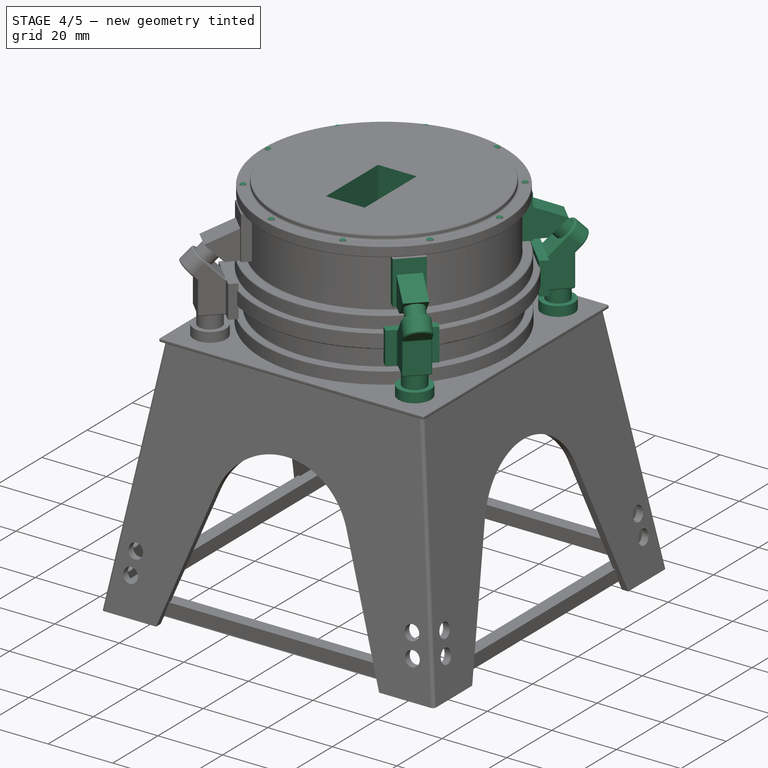
[diagram: stage 4 of 5 — iso view after this stage's code; geometry added in this stage tinted green]
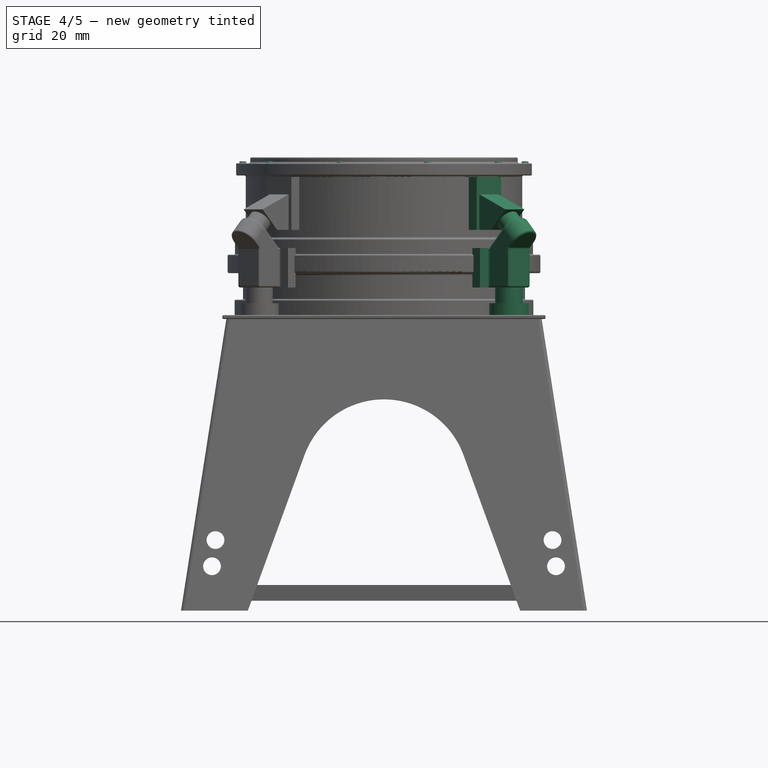
[diagram: stage 4 of 5 — front view after this stage's code; geometry added in this stage tinted green]
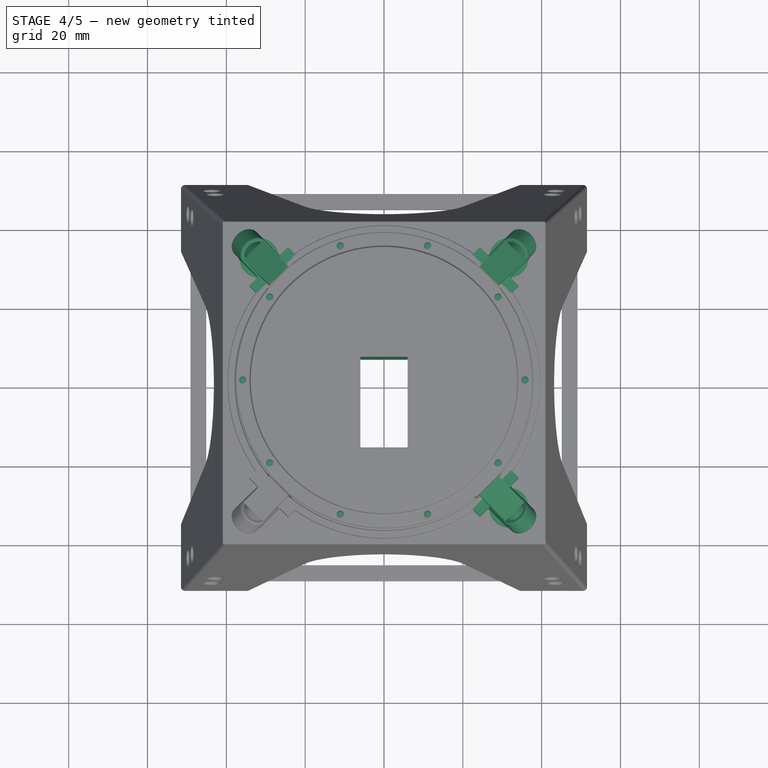
[diagram: stage 4 of 5 — top view after this stage's code; geometry added in this stage tinted green]
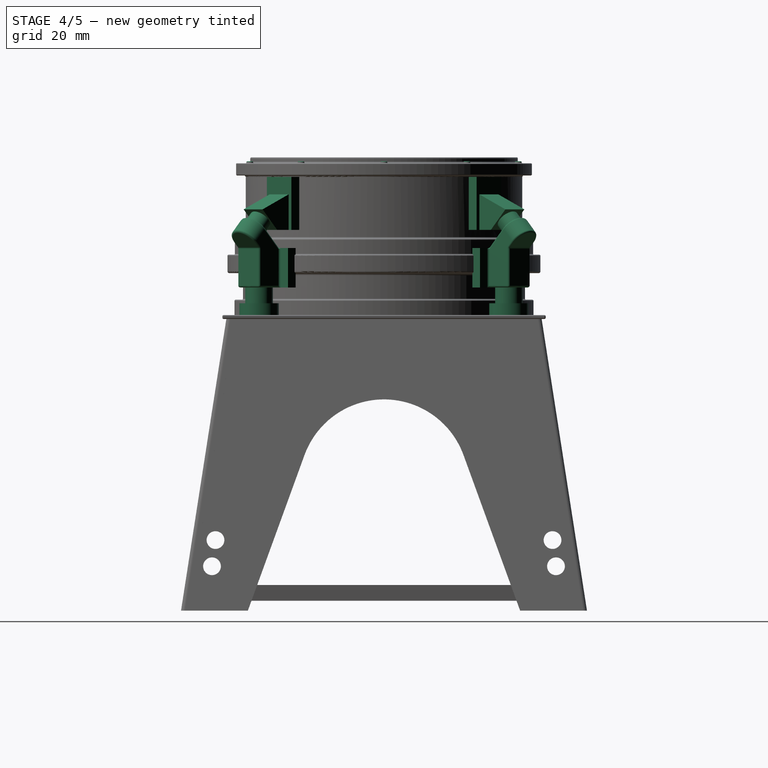
[diagram: stage 4 of 5 — right view after this stage's code; geometry added in this stage tinted green]
FEATURE [PartDesign::Fillet] Fillet002
  Base = -> Pad011 [Face99,Face107,Face98,Face108,Face101]
  BaseFeature = -> Pad011
  Placement = pos=(0,0,-139) rot=(0,0,1;0rad)
  Radius = 0.5
  Refine = true
  SupportTransform = false
  Suppressed = false
  UseAllEdges = false
FEATURE [PartDesign::PolarPattern] PolarPattern002
  Angle = 360
  Axis = -> Sketch010 [N_Axis]
  BaseFeature = -> Fillet002
  Mode = 0
  Occurrences = 4
  Offset = 120
  Originals = -> [Pad005,Pad006,Pad007,Pad008,Pad009,Pad010,Pad011,Fillet002,Pad004]
  Placement = pos=(0,0,-139) rot=(0,0,1;0rad)
  Refine = true
  Suppressed = false
  TransformMode = 0
FEATURE [Sketcher::SketchObject] Sketch017
  ArcFitTolerance = 1e-06
  AttachmentSupport = -> [PolarPattern002]
  ExternalGeometry = -> [PolarPattern002]
  FullyConstrained = true
  MakeInternals = false
  MapMode = 5
  Placement = pos=(0,0,-25.49) rot=(0,0,1;0rad)
  sketch-geometry (1):
    g0: Circle CenterX=35.8115 CenterY=0 CenterZ=0 NormalX=0 NormalY=0 NormalZ=1 AngleXU=0 Radius=0.85
  constraints (3):
    c: PointOnObject(g0,g-1)
    c: Distance(g0,g-3) = 1.5
    c: Diameter(g0) = 1.7
FEATURE [PartDesign::Pad] Pad012
  BaseFeature = -> PolarPattern002
  Direction = (0,0,1)
  Length = 0.5
  Length2 = 10
  Placement = pos=(0,0,-139) rot=(0,0,1;0rad)
  Profile = -> Sketch017
  ReferenceAxis = -> Sketch017 [N_Axis]
  Refine = true
  Suppressed = false
  Type = 0
FEATURE [PartDesign::Fillet] Fillet003
  Base = -> Pad012 [Face358]
  BaseFeature = -> Pad012
  Placement = pos=(0,0,-139) rot=(0,0,1;0rad)
  Radius = 0.2
  Refine = true
  SupportTransform = false
  Suppressed = false
  UseAllEdges = false
FEATURE [PartDesign::PolarPattern] PolarPattern003
  Angle = 360
  Axis = -> Z_Axis
  BaseFeature = -> Fillet003
  Mode = 0
  Occurrences = 10
  Offset = 120
  Originals = -> [Pad012,Fillet003]
  Placement = pos=(0,0,-139) rot=(0,0,1;0rad)
  Refine = true
  Suppressed = false
  TransformMode = 0
FEATURE [Sketcher::SketchObject] Sketch018
  ArcFitTolerance = 1e-06
  AttachmentSupport = -> [PolarPattern003]
  FullyConstrained = true
  MakeInternals = false
  MapMode = 5
  Placement = pos=(0,0,-24) rot=(0,0,1;0rad)
  sketch-geometry (6):
    g0: LineSegment StartX=-6 StartY=5.9 StartZ=0 EndX=-6 EndY=-17.1 EndZ=0
    g1: LineSegment StartX=-6 StartY=-17.1 StartZ=0 EndX=6 EndY=-17.1 EndZ=0
    g2: LineSegment StartX=6 StartY=-17.1 StartZ=0 EndX=6 EndY=5.9 EndZ=0
    g3: LineSegment StartX=6 StartY=5.9 StartZ=0 EndX=-6 EndY=5.9 EndZ=0
    g4: LineSegment [constr] StartX=-6 StartY=1.61 StartZ=0 EndX=0 EndY=1.61 EndZ=0
    g5: LineSegment [constr] StartX=0 StartY=1.61 StartZ=0 EndX=6 EndY=1.61 EndZ=0
  constraints (19):
    c: Coincident(g0,g1)
    c: Coincident(g1,g2)
    c: Coincident(g2,g3)
    c: Coincident(g3,g0)
    c: Vertical(g0)
    c: Vertical(g2)
    c: Horizontal(g1)
    c: Horizontal(g3)
    c: PointOnObject(g4,g0)
    c: PointOnObject(g4,g-2)
    c: Horizontal(g4)
    c: Coincident(g5,g4)
    c: PointOnObject(g5,g2)
    c: Horizontal(g5)
    c: Equal(g4,g5)
    c: Distance(g-1,g3) = 5.9
    c: DistanceY(g0,g0) = 23
    c: DistanceX(g3,g3) = 12
    c: Distance(g-1,g5) = 1.61
FEATURE [PartDesign::Pocket] Pocket001
  BaseFeature = -> PolarPattern003
  Direction = (0,0,-1)
  Length = 5
  Length2 = 5
  Placement = pos=(0,0,-139) rot=(0,0,1;0rad)
  Profile = -> Sketch018
  ReferenceAxis = -> Sketch018 [N_Axis]
  Refine = true
  Suppressed = false
  Type = 1
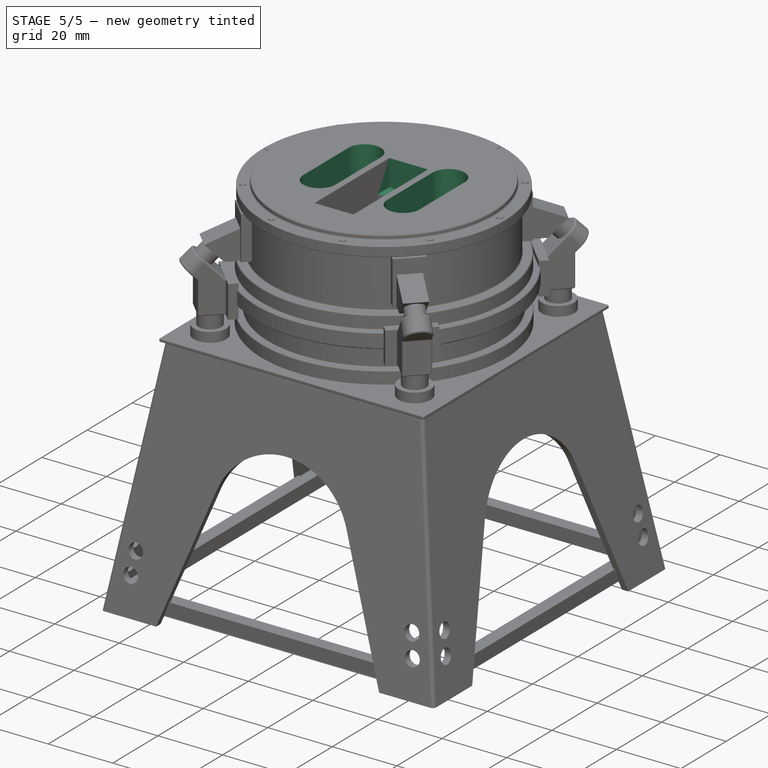
[diagram: stage 5 of 5 — iso view after this stage's code; geometry added in this stage tinted green]
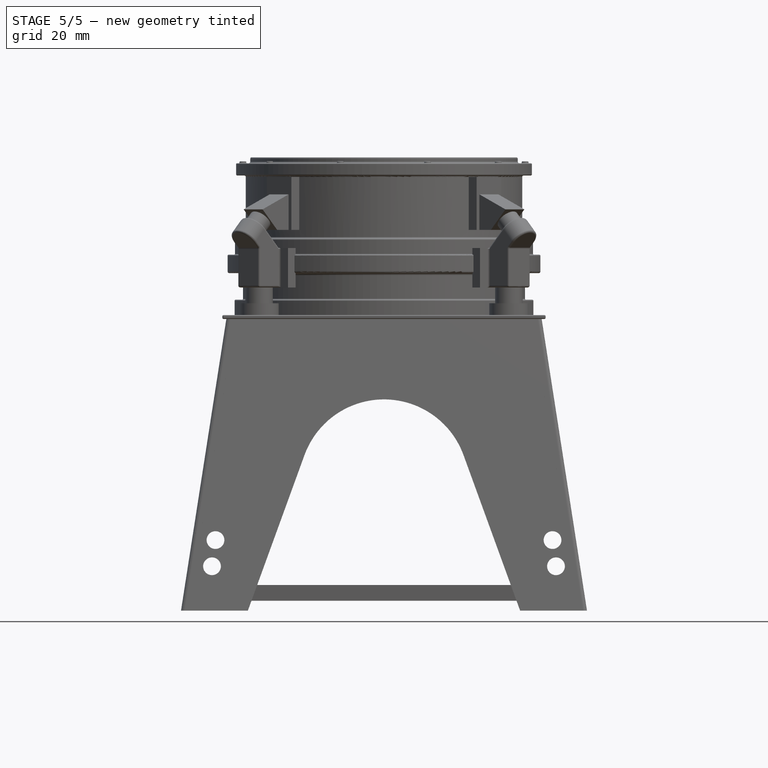
[diagram: stage 5 of 5 — front view after this stage's code; geometry added in this stage tinted green]
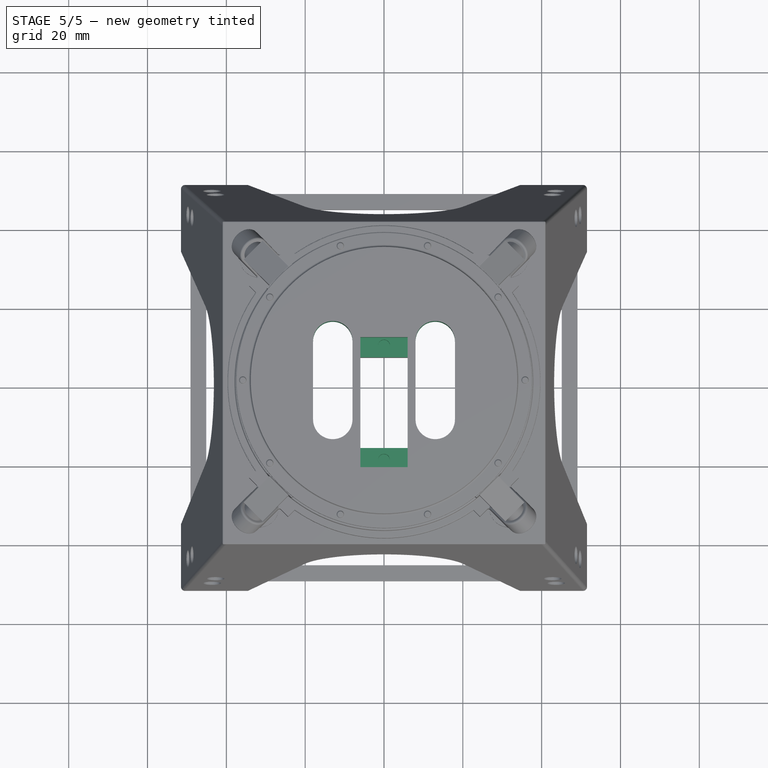
[diagram: stage 5 of 5 — top view after this stage's code; geometry added in this stage tinted green]
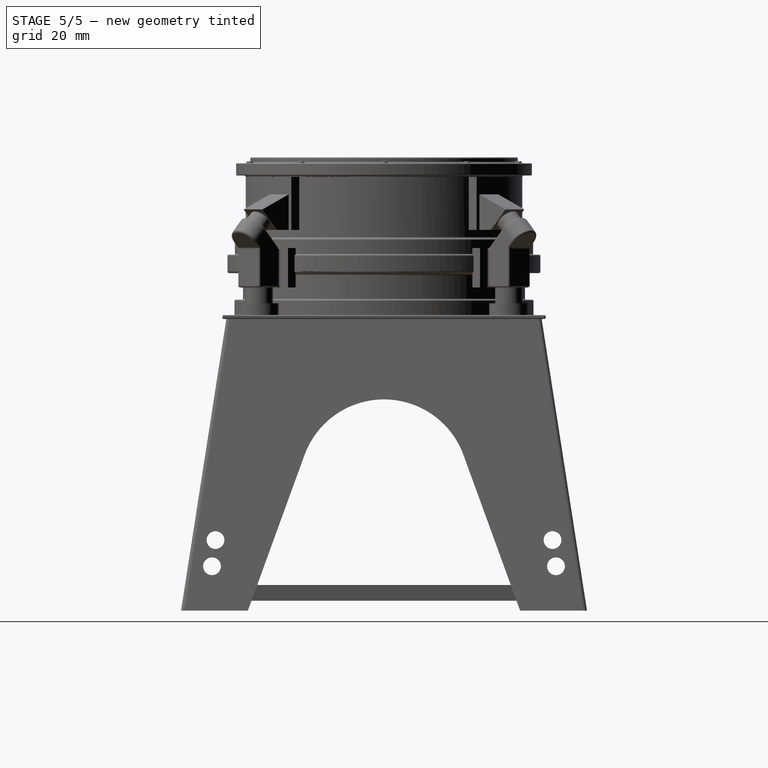
[diagram: stage 5 of 5 — right view after this stage's code; geometry added in this stage tinted green]
FEATURE [Sketcher::SketchObject] Sketch019
  ArcFitTolerance = 1e-06
  AttachmentSupport = -> [Pocket001]
  ExternalGeometry = -> [Pocket001]
  FullyConstrained = true
  MakeInternals = false
  MapMode = 5
  Placement = pos=(0,0,-24) rot=(0,0,1;0rad)
  sketch-geometry (8):
    g0: LineSegment StartX=-6 StartY=5.9 StartZ=0 EndX=6 EndY=5.9 EndZ=0
    g1: LineSegment StartX=6 StartY=5.9 StartZ=0 EndX=6 EndY=10.9 EndZ=0
    g2: LineSegment StartX=6 StartY=10.9 StartZ=0 EndX=-6 EndY=10.9 EndZ=0
    g3: LineSegment StartX=-6 StartY=10.9 StartZ=0 EndX=-6 EndY=5.9 EndZ=0
    g4: LineSegment StartX=-6 StartY=-17.1 StartZ=0 EndX=-6 EndY=-22.1 EndZ=0
    g5: LineSegment StartX=-6 StartY=-22.1 StartZ=0 EndX=6 EndY=-22.1 EndZ=0
    g6: LineSegment StartX=6 StartY=-22.1 StartZ=0 EndX=6 EndY=-17.1 EndZ=0
    g7: LineSegment StartX=6 StartY=-17.1 StartZ=0 EndX=-6 EndY=-17.1 EndZ=0
  constraints (20):
    c: Coincident(g0,g1)
    c: Coincident(g1,g2)
    c: Coincident(g2,g3)
    c: Coincident(g3,g0)
    c: Horizontal(g2)
    c: Vertical(g1)
    c: Vertical(g3)
    c: Coincident(g0,g-3)
    c: Coincident(g4,g5)
    c: Coincident(g5,g6)
    c: Coincident(g6,g7)
    c: Coincident(g7,g4)
    c: Vertical(g4)
    c: Vertical(g6)
    c: Horizontal(g5)
    c: Coincident(g4,g-4)
    c: Coincident(g6,g-4)
    c: Coincident(g0,g-3)
    c: Equal(g1,g6)
    c: DistanceY(g1,g1) = 5
FEATURE [PartDesign::Pocket] Pocket002
  BaseFeature = -> Pocket001
  Direction = (0,0,-1)
  Length = 8.2
  Length2 = 5
  Placement = pos=(0,0,-139) rot=(0,0,1;0rad)
  Profile = -> Sketch019
  ReferenceAxis = -> Sketch019 [N_Axis]
  Refine = true
  Suppressed = false
  Type = 0
FEATURE [Sketcher::SketchObject] Sketch020
  ArcFitTolerance = 1e-06
  AttachmentSupport = -> [Pocket002]
  ExternalGeometry = -> [Pocket002]
  FullyConstrained = true
  MakeInternals = false
  MapMode = 5
  Placement = pos=(0,0,-32.2) rot=(0,0,1;0rad)
  sketch-geometry (2):
    g0: Circle CenterX=0 CenterY=8.9 CenterZ=0 NormalX=0 NormalY=0 NormalZ=1 AngleXU=0 Radius=1.5
    g1: Circle CenterX=0 CenterY=-20.1 CenterZ=0 NormalX=0 NormalY=0 NormalZ=1 AngleXU=0 Radius=1.5
  constraints (6):
    c: PointOnObject(g0,g-2)
    c: PointOnObject(g1,g-2)
    c: Equal(g0,g1)
    c: Diameter(g0) = 3
    c: Distance(g0,g-3) = 3
    c: Distance(g1,g-4) = 3
FEATURE [PartDesign::Pocket] Pocket003
  BaseFeature = -> Pocket002
  Direction = (0,0,-1)
  Length = 5
  Length2 = 5
  Placement = pos=(0,0,-139) rot=(0,0,1;0rad)
  Profile = -> Sketch020
  ReferenceAxis = -> Sketch020 [N_Axis]
  Refine = true
  Suppressed = false
  Type = 0
FEATURE [Sketcher::SketchObject] Sketch021
  ArcFitTolerance = 1e-06
  AttachmentSupport = -> [Pocket003]
  ExternalGeometry = -> [Pocket003]
  FullyConstrained = true
  MakeInternals = false
  MapMode = 5
  Placement = pos=(0,0,-67) rot=(1,0,0;3.14159rad)
  sketch-geometry (1):
    g0: Circle CenterX=0 CenterY=0 CenterZ=0 NormalX=0 NormalY=0 NormalZ=1 AngleXU=0 Radius=31.7921
  constraints (2):
    c: Coincident(g0,g-1)
    c: Distance(g-3,g0) = 2
FEATURE [PartDesign::Pocket] Pocket004
  BaseFeature = -> Pocket003
  Direction = (0,0,1)
  Length = 0
  Length2 = 5
  Offset = 5
  Placement = pos=(0,0,-139) rot=(0,0,1;0rad)
  Profile = -> Sketch021
  ReferenceAxis = -> Sketch021 [N_Axis]
  Refine = true
  Suppressed = false
  Type = 3
  UpToFace = -> Pocket003 [Face64]
FEATURE [Sketcher::SketchObject] Sketch022
  ArcFitTolerance = 1e-06
  AttachmentSupport = -> [Pocket004]
  ExternalGeometry = -> [Pocket004]
  FullyConstrained = true
  MakeInternals = false
  MapMode = 5
  Placement = pos=(0,0,-24) rot=(0,0,1;0rad)
  sketch-geometry (8):
    g0: ArcOfCircle CenterX=-13 CenterY=10 CenterZ=0 NormalX=0 NormalY=0 NormalZ=1 AngleXU=0 Radius=5 StartAngle=1e-16 EndAngle=3.14159
    g1: ArcOfCircle CenterX=-13 CenterY=-10 CenterZ=0 NormalX=0 NormalY=0 NormalZ=1 AngleXU=0 Radius=5 StartAngle=3.14159 EndAngle=6.28319
    g2: LineSegment StartX=-8 StartY=10 StartZ=0 EndX=-8 EndY=-10 EndZ=0
    g3: LineSegment StartX=-18 StartY=10 StartZ=0 EndX=-18 EndY=-10 EndZ=0
    g4: ArcOfCircle CenterX=13 CenterY=10 CenterZ=0 NormalX=0 NormalY=0 NormalZ=1 AngleXU=0 Radius=5 StartAngle=1e-16 EndAngle=3.14159
    g5: ArcOfCircle CenterX=13 CenterY=-10 CenterZ=0 NormalX=0 NormalY=0 NormalZ=1 AngleXU=0 Radius=5 StartAngle=3.14159 EndAngle=6.28319
    g6: LineSegment StartX=18 StartY=10 StartZ=0 EndX=18 EndY=-10 EndZ=0
    g7: LineSegment StartX=8 StartY=10 StartZ=0 EndX=8 EndY=-10 EndZ=0
  constraints (20):
    c: Tangent(g0,g2) = 1.5708
    c: Tangent(g0,g3) = -1.5708
    c: Tangent(g1,g2) = 1.5708
    c: Tangent(g1,g3) = -1.5708
    c: Equal(g0,g1)
    c: Vertical(g2)
    c: Tangent(g4,g6) = 1.5708
    c: Tangent(g4,g7) = -1.5708
    c: Tangent(g5,g6) = 1.5708
    c: Tangent(g5,g7) = -1.5708
    c: Equal(g4,g5)
    c: Vertical(g6)
    c: Equal(g2,g7)
    c: Equal(g0,g4)
    c: Distance(g0,g-1) = 10
    c: Distance(g1,g-1) = 10
    c: Radius(g1) = 5
    c: Distance(g-3,g2) = 2
    c: Distance(g7,g-4) = 2
    c: Distance(g4,g-1) = 10
FEATURE [PartDesign::Pocket] Pocket005
  BaseFeature = -> Pocket004
  Direction = (0,0,-1)
  Length = 5
  Length2 = 5
  Placement = pos=(0,0,-139) rot=(0,0,1;0rad)
  Profile = -> Sketch022
  ReferenceAxis = -> Sketch022 [N_Axis]
  Refine = true
  Suppressed = false
  Type = 1
FEATURE [Sketcher::SketchObject] Sketch023
  ArcFitTolerance = 1e-06
  AttachmentSupport = -> [Pocket005]
  ExternalGeometry = -> [Pocket005]
  FullyConstrained = true
  MakeInternals = false
  MapMode = 5
  Placement = pos=(0,0,-67) rot=(1,0,0;3.14159rad)
  sketch-geometry (2):
    g0: Circle CenterX=-32 CenterY=32 CenterZ=0 NormalX=0 NormalY=0 NormalZ=1 AngleXU=0 Radius=1.5
    g1: Circle CenterX=-32 CenterY=32 CenterZ=0 NormalX=0 NormalY=0 NormalZ=1 AngleXU=0 Radius=3.5
  constraints (5):
    c: Coincident(g1,g0)
    c: Distance(g1,g0) = 2
    c: Diameter(g0) = 3
    c: Distance(g0,g-3) = 6
    c: Distance(g0,g-4) = 6
FEATURE [PartDesign::Pad] Pad013
  BaseFeature = -> Pocket005
  Direction = (0,0,-1)
  Length = 5
  Length2 = 10
  Placement = pos=(0,0,-139) rot=(0,0,1;0rad)
  Profile = -> Sketch023
  ReferenceAxis = -> Sketch023 [N_Axis]
  Refine = true
  Suppressed = false
  Type = 0
FEATURE [PartDesign::PolarPattern] PolarPattern004
  Angle = 360
  Axis = -> Sketch023 [N_Axis]
  BaseFeature = -> Pad013
  Mode = 0
  Occurrences = 4
  Offset = 120
  Originals = -> [Pad013]
  Placement = pos=(0,0,-139) rot=(0,0,1;0rad)
  Refine = true
  Suppressed = false
  TransformMode = 0
FEATURE [Sketcher::SketchObject] Sketch024
  ArcFitTolerance = 1e-06
  AttachmentSupport = -> [PolarPattern004]
  ExternalGeometry = -> [PolarPattern004]
  FullyConstrained = true
  MakeInternals = false
  MapMode = 5
  Placement = pos=(0,0,-37.2) rot=(1,0,0;3.14159rad)
  sketch-geometry (8):
    g0: LineSegment StartX=-6 StartY=17.1 StartZ=0 EndX=6 EndY=17.1 EndZ=0
    g1: LineSegment StartX=6 StartY=17.1 StartZ=0 EndX=6 EndY=33.98 EndZ=0
    g2: LineSegment StartX=6 StartY=33.98 StartZ=0 EndX=-6 EndY=33.98 EndZ=0
    g3: LineSegment StartX=-6 StartY=33.98 StartZ=0 EndX=-6 EndY=17.1 EndZ=0
    g4: LineSegment StartX=-6 StartY=-5.9 StartZ=0 EndX=-6 EndY=-33.06 EndZ=0
    g5: LineSegment StartX=-6 StartY=-33.06 StartZ=0 EndX=6 EndY=-33.06 EndZ=0
    g6: LineSegment StartX=6 StartY=-33.06 StartZ=0 EndX=6 EndY=-5.9 EndZ=0
    g7: LineSegment StartX=6 StartY=-5.9 StartZ=0 EndX=-6 EndY=-5.9 EndZ=0
  constraints (20):
    c: Coincident(g0,g1)
    c: Coincident(g1,g2)
    c: Coincident(g2,g3)
    c: Coincident(g3,g0)
    c: Horizontal(g2)
    c: Vertical(g1)
    c: Vertical(g3)
    c: Coincident(g0,g-3)
    c: Coincident(g4,g5)
    c: Coincident(g5,g6)
    c: Coincident(g6,g7)
    c: Coincident(g7,g4)
    c: Vertical(g4)
    c: Vertical(g6)
    c: Horizontal(g5)
    c: Coincident(g4,g-4)
    c: Coincident(g6,g-4)
    c: Coincident(g0,g-3)
    c: DistanceY(g6,g6) = 27.16
    c: DistanceY(g1,g1) = 16.88
FEATURE [PartDesign::Pad] Pad014
  BaseFeature = -> PolarPattern004
  Direction = (0,0,-1)
  Length = 5
  Length2 = 10
  Placement = pos=(0,0,-139) rot=(0,0,1;0rad)
  Profile = -> Sketch024
  ReferenceAxis = -> Sketch024 [N_Axis]
  Refine = true
  Suppressed = false
  Type = 0
FEATURE [PartDesign::Body] Body  label="TurretBaseV2"
  AllowCompound = false
  Group = -> [DatumPlane,Sketch,DatumPlane001,Sketch001,AdditiveLoft,Sketch002,Pocket,PolarPattern,DatumPlane002,DatumPlane003,Sketch003,Sketch004,SubtractiveLoft,Sketch005,Pad,Fillet,Fillet001,Sketch006,Pad001,Sketch007,Groove,Sketch008,Pad002,Pad003,PolarPattern001,Sketch009,Pad004,Sketch010,Pad005,Sketch011,Pad006,Sketch012,Pad007,Sketch013,Pad008,Sketch014,Pad009,DatumPlane004,Sketch015,Pad010,Sketch016,+22 more]
  Origin = -> Origin
  Tip = -> Pad014
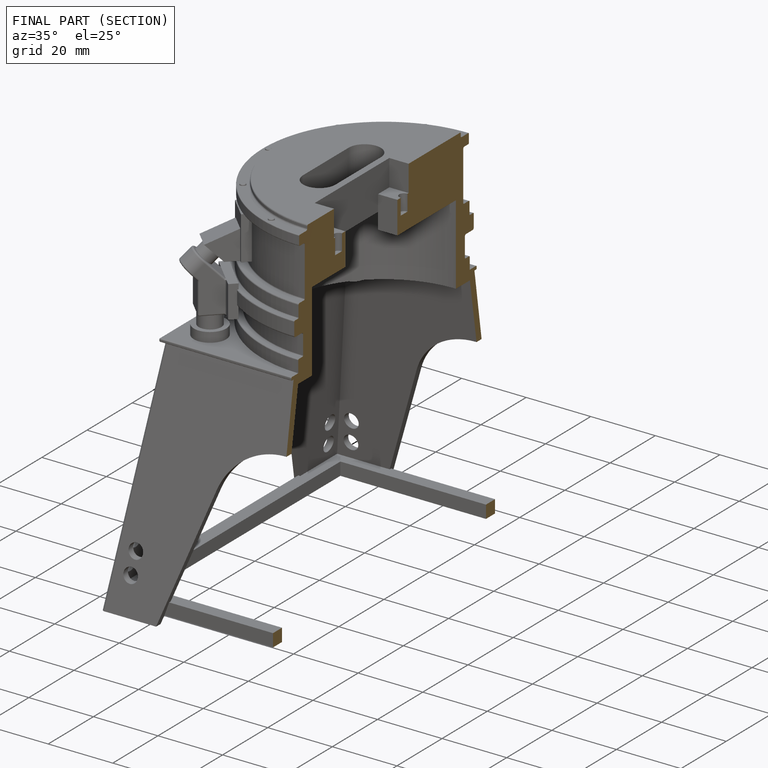
[diagram: finished part — half-section view (interior)]
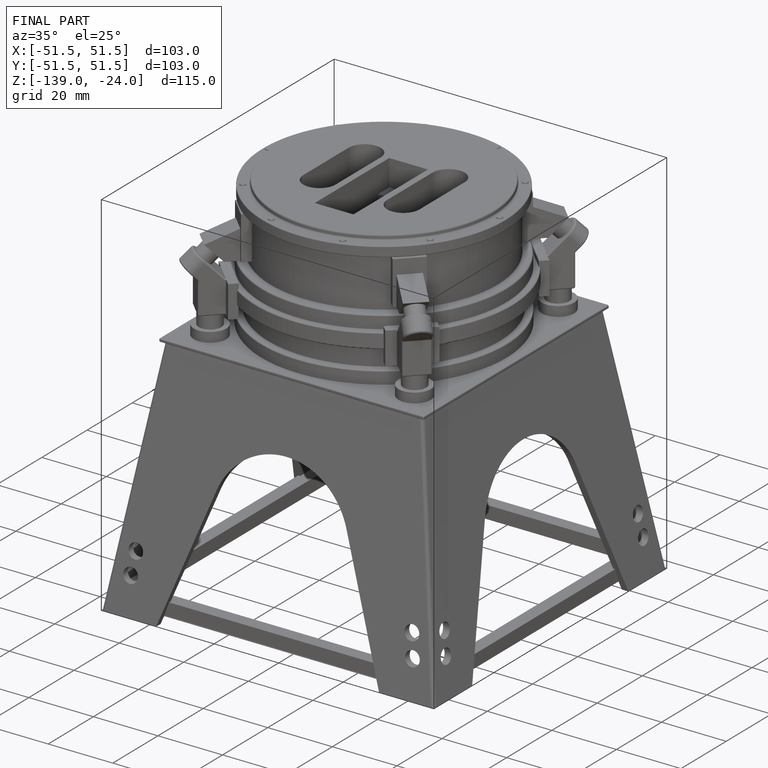
[diagram: finished part — iso view with bounding-box wireframe]
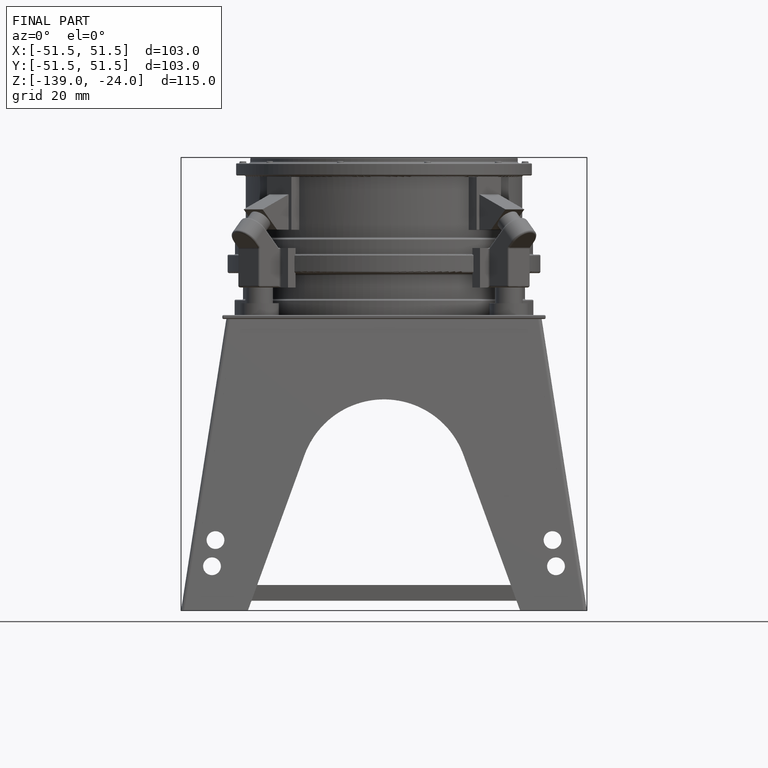
[diagram: finished part — front view with bounding-box wireframe]
